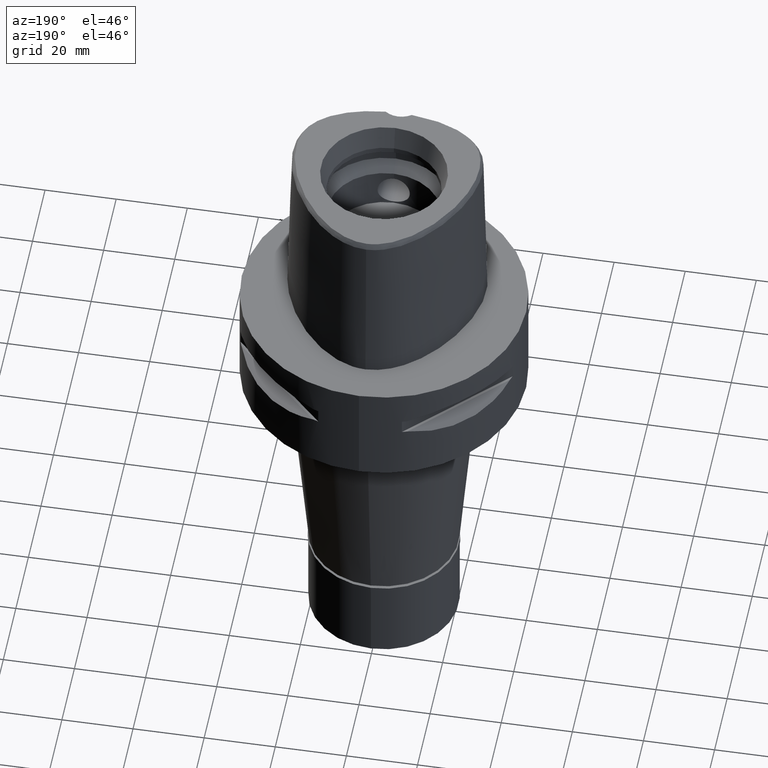
[diagram: clean part render]
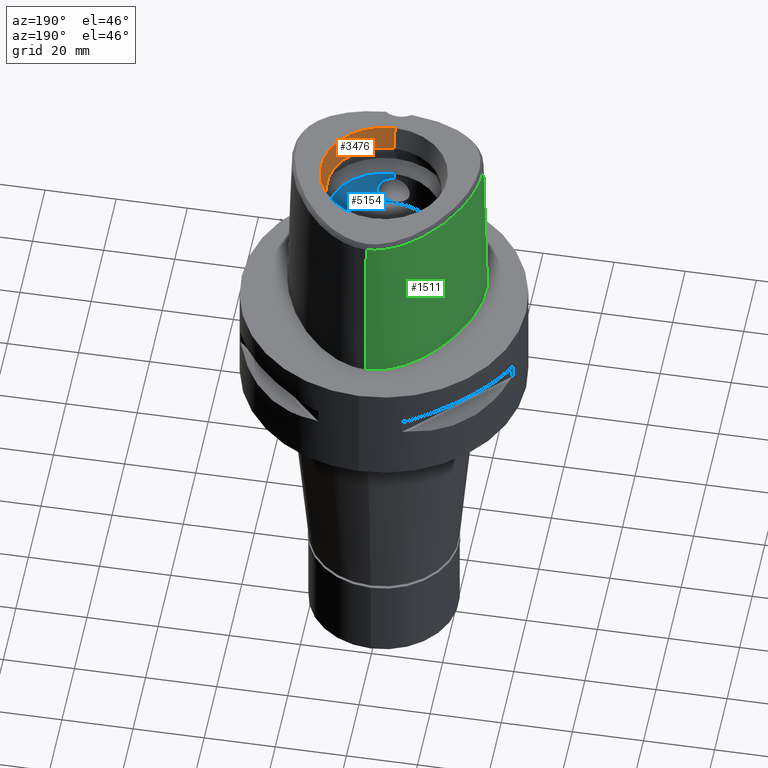
[diagram: same view with three faces highlighted in distinct colors, each labeled with its STEP entity id]
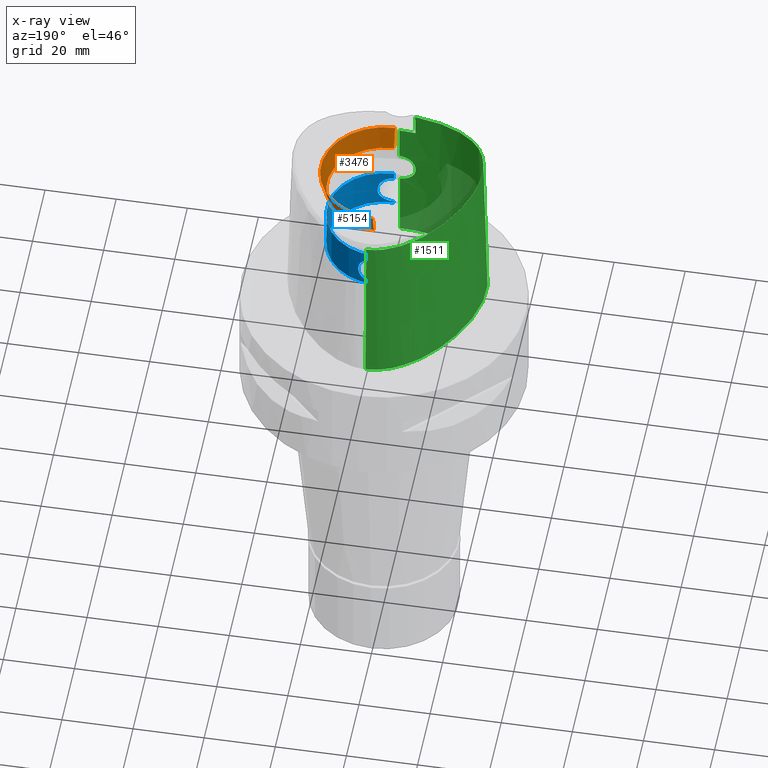
[diagram: x-ray of the same camera — body ghosted, the three highlighted faces saturated]
A machine part, auxiliary view with three faces highlighted in distinct colors.
The next image is the same camera in x-ray (body ghosted, the three faces saturated) — at least one of them is partly hidden behind the body in this view.
Their STEP definitions:

[orange] entity #3476 — the highlighted conical surface has half-angle 15 deg.
#59 = CONICAL_SURFACE ( 'NONE', #4078, 16.85743741578000154, 0.2617993877991000029 ) ;
#203 = DIRECTION ( 'NONE',  ( 0.0000000000000000000, 0.0000000000000000000, 1.000000000000000000 ) ) ;
#519 = ORIENTED_EDGE ( 'NONE', *, *, #2455, .F. ) ;
#541 = EDGE_CURVE ( 'NONE', #1410, #3661, #921, .T. ) ;
#699 = DIRECTION ( 'NONE',  ( 0.0000000000000000000, 0.0000000000000000000, 1.000000000000000000 ) ) ;
#703 = CARTESIAN_POINT ( 'NONE',  ( 0.0000000000000000000, 16.00000000000000000, 41.60000000000000142 ) ) ;
#855 = EDGE_LOOP ( 'NONE', ( #2106, #519, #4832, #3105 ) ) ;
#921 = CIRCLE ( 'NONE', #3508, 17.71487483155999954 ) ;
#1018 = CIRCLE ( 'NONE', #3682, 16.00000000000000000 ) ;
#1020 = CARTESIAN_POINT ( 'NONE',  ( 0.0000000000000000000, 16.00000000000000000, 41.60000000000000142 ) ) ;
#1200 = EDGE_CURVE ( 'NONE', #4904, #1410, #2328, .T. ) ;
#1287 = EDGE_CURVE ( 'NONE', #2847, #3661, #3862, .T. ) ;
#1410 = VERTEX_POINT ( 'NONE', #1548 ) ;
#1463 = CARTESIAN_POINT ( 'NONE',  ( 0.0000000000000000000, 0.0000000000000000000, 41.60000000000000142 ) ) ;
#1548 = CARTESIAN_POINT ( 'NONE',  ( 0.0000000000000000000, -17.71487483155999954, 48.00000000000000000 ) ) ;
#1564 = DIRECTION ( 'NONE',  ( 0.0000000000000000000, -0.2588190451025869088, 0.9659258262890505486 ) ) ;
#1679 = VECTOR ( 'NONE', #1564, 1000.000000000000000 ) ;
#1798 = DIRECTION ( 'NONE',  ( 0.0000000000000000000, 0.0000000000000000000, 1.000000000000000000 ) ) ;
#2071 = CARTESIAN_POINT ( 'NONE',  ( 0.0000000000000000000, -16.00000000000000000, 41.60000000000000142 ) ) ;
#2106 = ORIENTED_EDGE ( 'NONE', *, *, #1287, .F. ) ;
#2225 = DIRECTION ( 'NONE',  ( 0.0000000000000000000, 1.000000000000000000, 0.0000000000000000000 ) ) ;
#2227 = DIRECTION ( 'NONE',  ( 0.0000000000000000000, -1.000000000000000000, 0.0000000000000000000 ) ) ;
#2247 = FACE_OUTER_BOUND ( 'NONE', #855, .T. ) ;
#2328 = LINE ( 'NONE', #4357, #1679 ) ;
#2368 = VECTOR ( 'NONE', #3005, 1000.000000000000000 ) ;
#2455 = EDGE_CURVE ( 'NONE', #4904, #2847, #1018, .T. ) ;
#2621 = CARTESIAN_POINT ( 'NONE',  ( 0.0000000000000000000, 0.0000000000000000000, 44.79999999999999716 ) ) ;
#2705 = DIRECTION ( 'NONE',  ( 0.0000000000000000000, -1.000000000000000000, 0.0000000000000000000 ) ) ;
#2847 = VERTEX_POINT ( 'NONE', #1020 ) ;
#3005 = DIRECTION ( 'NONE',  ( 0.0000000000000000000, 0.2588190451025869088, 0.9659258262890505486 ) ) ;
#3053 = CARTESIAN_POINT ( 'NONE',  ( 0.0000000000000000000, 17.71487483155999954, 48.00000000000000000 ) ) ;
#3105 = ORIENTED_EDGE ( 'NONE', *, *, #541, .T. ) ;
#3476 = ADVANCED_FACE ( 'NONE', ( #2247 ), #59, .F. ) ;
#3508 = AXIS2_PLACEMENT_3D ( 'NONE', #4179, #1798, #2227 ) ;
#3661 = VERTEX_POINT ( 'NONE', #3053 ) ;
#3682 = AXIS2_PLACEMENT_3D ( 'NONE', #1463, #203, #2705 ) ;
#3862 = LINE ( 'NONE', #703, #2368 ) ;
#4078 = AXIS2_PLACEMENT_3D ( 'NONE', #2621, #699, #2225 ) ;
#4179 = CARTESIAN_POINT ( 'NONE',  ( 0.0000000000000000000, 0.0000000000000000000, 48.00000000000000000 ) ) ;
#4357 = CARTESIAN_POINT ( 'NONE',  ( 0.0000000000000000000, -16.00000000000000000, 41.60000000000000142 ) ) ;
#4832 = ORIENTED_EDGE ( 'NONE', *, *, #1200, .T. ) ;
#4904 = VERTEX_POINT ( 'NONE', #2071 ) ;

[blue] entity #5154 — the highlighted cylindrical surface (partial cylindrical patch) has radius 16 mm, axis along (0, 0, -1).
#4 = CARTESIAN_POINT ( 'NONE',  ( 4.086977290098439575, 15.46939710896591436, 22.99892130838378179 ) ) ;
#11 = CARTESIAN_POINT ( 'NONE',  ( 0.9962082175967942321, -15.96920693198799057, 29.44202344386631509 ) ) ;
#30 = CARTESIAN_POINT ( 'NONE',  ( 4.549969628939022570, 15.33940615444025646, 25.27729323598638089 ) ) ;
#36 = CARTESIAN_POINT ( 'NONE',  ( 4.550016828128796043, -15.33941121579424660, 25.13784116170160132 ) ) ;
#51 = CARTESIAN_POINT ( 'NONE',  ( 4.161428030123373922, 15.44954512553541726, 26.84475952259135667 ) ) ;
#54 = CARTESIAN_POINT ( 'NONE',  ( 4.323961735963286479, -15.40531205937661419, 26.45108983439440919 ) ) ;
#74 = CARTESIAN_POINT ( 'NONE',  ( 2.574465388933369958, 15.79152407840505745, 28.75166033253495712 ) ) ;
#82 = CARTESIAN_POINT ( 'NONE',  ( 3.751169547828881345, -15.55403617233515234, 27.57516546916804856 ) ) ;
#85 = ORIENTED_EDGE ( 'NONE', *, *, #4485, .F. ) ;
#103 = CARTESIAN_POINT ( 'NONE',  ( 1.850775727679746518, 15.89250999642956330, 29.15683968798263948 ) ) ;
#109 = CARTESIAN_POINT ( 'NONE',  ( 4.543547489458131139, -15.34147157909354497, 25.28214318541729710 ) ) ;
#110 = ORIENTED_EDGE ( 'NONE', *, *, #2048, .F. ) ;
#111 = VERTEX_POINT ( 'NONE', #2052 ) ;
#125 = EDGE_CURVE ( 'NONE', #2190, #3690, #5040, .T. ) ;
#132 = CARTESIAN_POINT ( 'NONE',  ( 1.747078318710702183, -15.90418482861358918, 20.79877242566623963 ) ) ;
#179 = CARTESIAN_POINT ( 'NONE',  ( 2.546620738279579577, 15.79604134675055604, 28.77057471350508777 ) ) ;
#266 = CARTESIAN_POINT ( 'NONE',  ( 0.2782013015967914060, 16.00000000000000711, 20.44999999999999929 ) ) ;
#295 = CARTESIAN_POINT ( 'NONE',  ( 2.546587751938866440, -15.79604663803838704, 21.22940300794441271 ) ) ;
#322 = CARTESIAN_POINT ( 'NONE',  ( 1.997936047084001743, -15.87476822621203887, 20.91148056799755395 ) ) ;
#331 = CARTESIAN_POINT ( 'NONE',  ( 0.0000000000000000000, 16.00000000000000000, 29.55000000000000071 ) ) ;
#335 = CARTESIAN_POINT ( 'NONE',  ( 1.707207874315188167, -15.90858119987962205, 29.21757803147074739 ) ) ;
#354 = CARTESIAN_POINT ( 'NONE',  ( 3.649470479182351124, 15.57840939008606185, 22.28201629146690976 ) ) ;
#379 = CARTESIAN_POINT ( 'NONE',  ( 4.053985978798844592, 15.47807549748950606, 22.93277328934321346 ) ) ;
#400 = CARTESIAN_POINT ( 'NONE',  ( 3.744577833560327029, 15.55572763828316774, 27.58647462658780825 ) ) ;
#405 = CARTESIAN_POINT ( 'NONE',  ( 2.523297974047943093, -15.79902995601022830, 28.78915039825570688 ) ) ;
#417 = LINE ( 'NONE', #1597, #941 ) ;
#424 = CARTESIAN_POINT ( 'NONE',  ( 3.536514746485360128, 15.60452860933670216, 27.86376314389772446 ) ) ;
#430 = CARTESIAN_POINT ( 'NONE',  ( 2.574432664116685920, -15.79152938143934826, 21.24831721091018011 ) ) ;
#450 = CARTESIAN_POINT ( 'NONE',  ( 3.189300142053554499, 15.67891719246137683, 21.75484346885352949 ) ) ;
#455 = CARTESIAN_POINT ( 'NONE',  ( 4.261969212494427062, -15.42206096146380645, 23.40603321982711194 ) ) ;
#479 = CARTESIAN_POINT ( 'NONE',  ( 4.237586783300753446, -15.42875071981104540, 23.34288945884287969 ) ) ;
#500 = CARTESIAN_POINT ( 'NONE',  ( 2.729597290681040622, 15.76540486867777524, 28.64086068374010807 ) ) ;
#507 = CARTESIAN_POINT ( 'NONE',  ( 3.608925104561844677, -15.58793851891443616, 27.77197051516056092 ) ) ;
#533 = CARTESIAN_POINT ( 'NONE',  ( 3.369125266152328102, -15.64144421124459505, 21.94071229671583367 ) ) ;
#537 = DIRECTION ( 'NONE',  ( 0.0000000000000000000, 0.0000000000000000000, -1.000000000000000000 ) ) ;
#555 = CARTESIAN_POINT ( 'NONE',  ( 1.754045412219450872, -15.90341773696105143, 20.80167885172048869 ) ) ;
#655 = DIRECTION ( 'NONE',  ( 0.0000000000000000000, 0.0000000000000000000, 1.000000000000000000 ) ) ;
#685 = CARTESIAN_POINT ( 'NONE',  ( 2.523274598537063707, 15.79903356793057867, 21.21083401355727460 ) ) ;
#711 = CARTESIAN_POINT ( 'NONE',  ( 1.159171110856038078, -15.96839087129520429, 20.55577344028494480 ) ) ;
#747 = CARTESIAN_POINT ( 'NONE',  ( 1.465311484624076011, -15.93288073456757381, 29.30877354139807878 ) ) ;
#766 = CARTESIAN_POINT ( 'NONE',  ( 3.903693436951860996, 15.51651326497629135, 27.33777345596545771 ) ) ;
#791 = CARTESIAN_POINT ( 'NONE',  ( 3.468485652279672316, 15.62005439302203946, 22.05131334578006985 ) ) ;
#812 = CARTESIAN_POINT ( 'NONE',  ( 3.164574645498917871, 15.68391565187350345, 21.73073258343147174 ) ) ;
#814 = B_SPLINE_CURVE_WITH_KNOTS ( 'NONE', 3,
 ( #2264, #266, #3501, #1870, #2941, #3449, #2562, #2320, #5028, #1471, #1080, #5085, #2351, #4136, #4264, #685, #2294, #1896, #3472, #3610, #4009, #4823, #812, #3932, #450, #864, #791, #2815, #354, #838, #2383, #1190, #1959, #4419, #3206, #2453, #1579, #4398, #5116, #379, #4, #1556, #2031, #3557, #1604, #3183, #3959, #2765, #3530, #1161, #4780, #3984, #5143, #30, #4346, #2057, #2836, #2794, #3155, #4728, #4757, #1238, #3581, #1217, #51, #1628, #4376, #1264, #766, #2425, #3247, #2406, #1649, #3227, #1986, #400, #2864, #424, #2008, #4797, #4034, #3630, #4446, #3318, #500, #4103, #3748, #74, #2101, #179, #3679, #2177, #4468, #1286, #2504, #1701, #4152, #103, #4058, #887, #4077, #3296, #2887, #2482, #4850 ),
 .UNSPECIFIED., .F., .F.,
 ( 4, 2, 2, 1, 1, 1, 1, 2, 2, 2, 2, 2, 1, 1, 2, 2, 2, 2, 1, 1, 1, 1, 2, 2, 2, 2, 1, 1, 2, 2, 2, 2, 2, 2, 2, 1, 1, 1, 2, 2, 2, 2, 1, 1, 1, 2, 2, 2, 2, 2, 2, 2, 1, 1, 1, 2, 2, 2, 2, 1, 1, 2, 2, 4 ),
 ( 0.0000000000000000000, 0.06249999999996654065, 0.09374999999994973465, 0.1093749999999412692, 0.1171874999999370781, 0.1210937499999349826, 0.1230468749999340111, 0.1240234374999335532, 0.1249999999999330813, 0.1874999999999101552, 0.2187499999998987477, 0.2343749999998929745, 0.2421874999998901712, 0.2460937499998887001, 0.2480468749998880063, 0.2499999999998872569, 0.2812499999998750999, 0.2968749999998689937, 0.3046874999998659961, 0.3085937499998644973, 0.3105468749998637756, 0.3115234374998638867, 0.3120117187498644418, 0.3124999999998649969, 0.3437499999998670508, 0.3593749999998683275, 0.3671874999998693823, 0.3710937499998695488, 0.3730468749998696043, 0.3749999999998696598, 0.4374999999998667732, 0.4687499999998652744, 0.4999999999998638867, 0.5624999999998610001, 0.5937499999998595568, 0.6093749999998592237, 0.6171874999998593347, 0.6210937499998597788, 0.6230468749998600009, 0.6249999999998601119, 0.6562499999998661071, 0.6718749999998686606, 0.6796874999998697708, 0.6835937499998703260, 0.6855468749998705480, 0.6865234374998711031, 0.6874999999998715472, 0.7187499999998830935, 0.7343749999998886446, 0.7499999999998940847, 0.7812499999999055200, 0.7968749999999111822, 0.8046874999999141798, 0.8085937499999159561, 0.8105468749999169553, 0.8115234374999170663, 0.8124999999999171774, 0.8437499999999279465, 0.8593749999999333866, 0.8671874999999360512, 0.8710937499999372724, 0.8730468749999379385, 0.8749999999999387157, 1.000000000000000000 ),
 .UNSPECIFIED. ) ;
#819 = CARTESIAN_POINT ( 'NONE',  ( 2.785122922255519828, -15.75567992730158728, 21.40120808577647793 ) ) ;
#838 = CARTESIAN_POINT ( 'NONE',  ( 3.702056838117071980, 15.56588022015961137, 22.35459497960722075 ) ) ;
#844 = CARTESIAN_POINT ( 'NONE',  ( 4.442100170287626604, -15.37148932952082525, 24.00408744802902916 ) ) ;
#863 = EDGE_CURVE ( 'NONE', #1028, #2190, #4998, .T. ) ;
#864 = CARTESIAN_POINT ( 'NONE',  ( 3.349830735756511579, 15.64617010507494577, 21.91353457420719053 ) ) ;
#869 = B_SPLINE_CURVE_WITH_KNOTS ( 'NONE', 3,
 ( #3138, #2410, #1175, #11, #3481, #4380, #747, #4715, #2304, #3188, #3880, #335, #3590, #3989, #1146, #405, #2363, #3943, #2391, #5126, #1565, #4737, #2799, #3966, #1992, #1633, #2846, #507, #2109, #2867, #3231, #82, #2464, #1315, #1614, #4802, #4451, #4402, #4855, #3688, #4064, #4427, #3213, #3615, #4039, #1656, #4500, #54, #1221, #4086, #1243, #109, #36, #1707, #3302, #844, #4880, #2913, #923, #455, #479, #2537, #2060, #3706, #3633, #4785, #4111, #895, #3255, #2083, #3659, #4830, #2487, #1270, #3282, #870, #2435, #2820, #1683, #533, #1294, #2137, #2893, #819, #4472, #2511, #4015, #430, #2040, #295, #3096, #3129, #5054, #1137, #4675, #322, #1840, #3324, #1344, #4527, #555, #132, #711, #4645, #3895 ),
 .UNSPECIFIED., .F., .F.,
 ( 4, 2, 2, 1, 1, 1, 1, 2, 2, 2, 2, 2, 1, 1, 2, 2, 2, 2, 1, 1, 1, 1, 2, 2, 2, 2, 1, 1, 2, 2, 2, 2, 2, 2, 2, 1, 1, 1, 2, 2, 2, 2, 1, 1, 1, 2, 2, 2, 2, 2, 2, 2, 1, 1, 1, 2, 2, 2, 2, 1, 1, 2, 2, 4 ),
 ( 0.0000000000000000000, 0.06249999999998458178, 0.09374999999997692124, 0.1093749999999731048, 0.1171874999999710509, 0.1210937499999699962, 0.1230468749999693856, 0.1240234374999690525, 0.1249999999999687333, 0.1874999999999487355, 0.2187499999999386324, 0.2343749999999333589, 0.2421874999999306943, 0.2460937499999294453, 0.2480468749999286404, 0.2499999999999278633, 0.2812499999999161782, 0.2968749999999103495, 0.3046874999999074074, 0.3085937499999064082, 0.3105468749999054090, 0.3115234374999054090, 0.3120117187499054090, 0.3124999999999054645, 0.3437499999999121258, 0.3593749999999155120, 0.3671874999999171774, 0.3710937499999183986, 0.3730468749999190092, 0.3749999999999196199, 0.4374999999999352185, 0.4687499999999426570, 0.4999999999999500400, 0.5624999999999656941, 0.5937499999999735767, 0.6093749999999777955, 0.6171874999999796829, 0.6210937499999802380, 0.6230468749999805711, 0.6249999999999807931, 0.6562499999999935607, 0.6718749999999998890, 0.6796875000000031086, 0.6835937500000043299, 0.6855468750000047740, 0.6865234375000049960, 0.6875000000000051070, 0.7187500000000003331, 0.7343749999999978906, 0.7499999999999953371, 0.7812499999999900080, 0.7968749999999872324, 0.8046874999999860112, 0.8085937499999852340, 0.8105468749999850120, 0.8115234374999849010, 0.8124999999999847899, 0.8437499999999857891, 0.8593749999999864553, 0.8671874999999866773, 0.8710937499999868994, 0.8730468749999871214, 0.8749999999999873435, 1.000000000000000000 ),
 .UNSPECIFIED. ) ;
#870 = CARTESIAN_POINT ( 'NONE',  ( 3.744574952276495505, -15.55572859462526125, 22.41352109345751131 ) ) ;
#887 = CARTESIAN_POINT ( 'NONE',  ( 1.770126022856088888, 15.90163656242777535, 29.19156648951770450 ) ) ;
#895 = CARTESIAN_POINT ( 'NONE',  ( 3.962675966015230866, -15.50163061358844274, 22.76265160108562924 ) ) ;
#923 = CARTESIAN_POINT ( 'NONE',  ( 4.308072446263530253, -15.40933950963638210, 23.53257834519853375 ) ) ;
#936 = FACE_OUTER_BOUND ( 'NONE', #3843, .T. ) ;
#941 = VECTOR ( 'NONE', #1572, 1000.000000000000000 ) ;
#962 = CYLINDRICAL_SURFACE ( 'NONE', #4495, 16.00000000000000000 ) ;
#1012 = AXIS2_PLACEMENT_3D ( 'NONE', #4320, #655, #4294 ) ;
#1028 = VERTEX_POINT ( 'NONE', #4090 ) ;
#1058 = VERTEX_POINT ( 'NONE', #4805 ) ;
#1080 = CARTESIAN_POINT ( 'NONE',  ( 1.698251660413096387, 15.90953892135421555, 20.77880769513062731 ) ) ;
#1137 = CARTESIAN_POINT ( 'NONE',  ( 2.264348912133030911, -15.83946624510570267, 21.05056460265715756 ) ) ;
#1146 = CARTESIAN_POINT ( 'NONE',  ( 2.143401054089212998, -15.85668826431955658, 29.02456277713150712 ) ) ;
#1161 = CARTESIAN_POINT ( 'NONE',  ( 4.495809259330163066, 15.35589036408810060, 24.28415928063268225 ) ) ;
#1175 = CARTESIAN_POINT ( 'NONE',  ( 0.5640746612217173439, -15.99230173299699764, 29.52441511482192382 ) ) ;
#1190 = CARTESIAN_POINT ( 'NONE',  ( 3.751177014894234496, 15.55403459786074549, 22.42484540323997066 ) ) ;
#1217 = CARTESIAN_POINT ( 'NONE',  ( 4.215499819405168047, 15.43479043457173283, 26.71234694426702916 ) ) ;
#1221 = CARTESIAN_POINT ( 'NONE',  ( 4.411054695672140369, -15.38060105775067399, 26.15499689250681215 ) ) ;
#1238 = CARTESIAN_POINT ( 'NONE',  ( 4.226857831073056460, 15.43168670836678658, 26.68412203476030697 ) ) ;
#1243 = CARTESIAN_POINT ( 'NONE',  ( 4.516447097097185726, -15.34971033308621635, 25.57020538857597813 ) ) ;
#1264 = CARTESIAN_POINT ( 'NONE',  ( 3.962677025106232431, 15.50163036113120718, 27.23734653533288252 ) ) ;
#1270 = CARTESIAN_POINT ( 'NONE',  ( 3.803025602435695873, -15.54144546655661507, 22.50209651552996704 ) ) ;
#1286 = CARTESIAN_POINT ( 'NONE',  ( 2.264380261550365425, 15.83946175093809927, 28.94941747298992141 ) ) ;
#1294 = CARTESIAN_POINT ( 'NONE',  ( 3.303400810044995417, -15.65543729914151427, 21.86952368851872919 ) ) ;
#1315 = CARTESIAN_POINT ( 'NONE',  ( 3.768400076223533901, -15.54985749062494804, 27.54983819170281834 ) ) ;
#1334 = ORIENTED_EDGE ( 'NONE', *, *, #2980, .F. ) ;
#1340 = ORIENTED_EDGE ( 'NONE', *, *, #2886, .T. ) ;
#1344 = CARTESIAN_POINT ( 'NONE',  ( 1.794211577394496882, -15.89895019350739602, 20.81863176061382248 ) ) ;
#1466 = LINE ( 'NONE', #3494, #4688 ) ;
#1471 = CARTESIAN_POINT ( 'NONE',  ( 1.684854944397863541, 15.91096538466819155, 20.77342622897208813 ) ) ;
#1556 = CARTESIAN_POINT ( 'NONE',  ( 4.132994277957470430, 15.45714554145822817, 23.09680318323983172 ) ) ;
#1562 = LINE ( 'NONE', #331, #3820 ) ;
#1565 = CARTESIAN_POINT ( 'NONE',  ( 3.079092618832109274, -15.70089896343313995, 28.35045023963298405 ) ) ;
#1572 = DIRECTION ( 'NONE',  ( 0.0000000000000000000, 0.0000000000000000000, 1.000000000000000000 ) ) ;
#1579 = CARTESIAN_POINT ( 'NONE',  ( 3.772437110205654864, 15.54887807023826163, 22.45613975368386761 ) ) ;
#1597 = CARTESIAN_POINT ( 'NONE',  ( 0.0000000000000000000, 16.00000000000000000, 20.00000000000000000 ) ) ;
#1604 = CARTESIAN_POINT ( 'NONE',  ( 4.189656546178186503, 15.44187136844729835, 23.22535852732936590 ) ) ;
#1614 = CARTESIAN_POINT ( 'NONE',  ( 3.770760734101257672, -15.54928465813047467, 27.54634354341527214 ) ) ;
#1628 = CARTESIAN_POINT ( 'NONE',  ( 4.102398804168365665, 15.46541759477710798, 26.97353641195589447 ) ) ;
#1633 = CARTESIAN_POINT ( 'NONE',  ( 3.349840423004541989, -15.64616789809117314, 28.08645433734457342 ) ) ;
#1649 = CARTESIAN_POINT ( 'NONE',  ( 3.808567360701280879, 15.54008837984835090, 27.48944576344617374 ) ) ;
#1656 = CARTESIAN_POINT ( 'NONE',  ( 4.196349607671426618, -15.44005382475887700, 26.75875646608632152 ) ) ;
#1683 = CARTESIAN_POINT ( 'NONE',  ( 3.484915605883006418, -15.61614794283481622, 22.07329374033457015 ) ) ;
#1701 = CARTESIAN_POINT ( 'NONE',  ( 1.997966242366577605, 15.87476439172031206, 29.08850468438479453 ) ) ;
#1707 = CARTESIAN_POINT ( 'NONE',  ( 4.549966242427916363, -15.33940732230152371, 24.72265458138945604 ) ) ;
#1840 = CARTESIAN_POINT ( 'NONE',  ( 1.899637281608623995, -15.88672085085081953, 20.86536723555195039 ) ) ;
#1870 = CARTESIAN_POINT ( 'NONE',  ( 0.9961926526049751374, 15.96920793816025608, 20.55797314716945934 ) ) ;
#1876 = ORIENTED_EDGE ( 'NONE', *, *, #125, .T. ) ;
#1896 = CARTESIAN_POINT ( 'NONE',  ( 2.857351461372844792, 15.74233650126612183, 21.45806363788261706 ) ) ;
#1959 = CARTESIAN_POINT ( 'NONE',  ( 3.762799422814133710, 15.55121651038781039, 22.44189552775758756 ) ) ;
#1986 = CARTESIAN_POINT ( 'NONE',  ( 3.799106346153691582, 15.54240362262474306, 27.50385701844249908 ) ) ;
#1992 = CARTESIAN_POINT ( 'NONE',  ( 3.189316939996577727, -15.67891379176638367, 28.24514002011345326 ) ) ;
#2008 = CARTESIAN_POINT ( 'NONE',  ( 3.484927592812291142, 15.61614509033863207, 27.92669190149619141 ) ) ;
#2031 = CARTESIAN_POINT ( 'NONE',  ( 4.155135374964909367, 15.45121126152381308, 23.14540970916084817 ) ) ;
#2040 = CARTESIAN_POINT ( 'NONE',  ( 2.554833987909692627, -15.79471443075282089, 21.23497661347725085 ) ) ;
#2048 = EDGE_CURVE ( 'NONE', #3451, #3690, #869, .T. ) ;
#2052 = CARTESIAN_POINT ( 'NONE',  ( 0.0000000000000000000, -16.00000000000000000, 31.50000000000000000 ) ) ;
#2057 = CARTESIAN_POINT ( 'NONE',  ( 4.442108612069406881, 15.37148708700024358, 25.99587535441274611 ) ) ;
#2060 = CARTESIAN_POINT ( 'NONE',  ( 4.219629281423734390, -15.43366229842501802, 23.29784757614799773 ) ) ;
#2080 = ORIENTED_EDGE ( 'NONE', *, *, #2153, .F. ) ;
#2083 = CARTESIAN_POINT ( 'NONE',  ( 3.873230888532573246, -15.52414120514505846, 22.61183188859394377 ) ) ;
#2101 = CARTESIAN_POINT ( 'NONE',  ( 2.554866899785636303, 15.79470913535774024, 28.76500105321615663 ) ) ;
#2109 = CARTESIAN_POINT ( 'NONE',  ( 3.649467371010107541, -15.57840986860043841, 27.71798782283265439 ) ) ;
#2123 = CARTESIAN_POINT ( 'NONE',  ( 0.0000000000000000000, 0.0000000000000000000, 50.39999999999999858 ) ) ;
#2137 = CARTESIAN_POINT ( 'NONE',  ( 3.094055331481240234, -15.69862851489195776, 21.65804293864540142 ) ) ;
#2152 = EDGE_CURVE ( 'NONE', #111, #3897, #3275, .T. ) ;
#2153 = EDGE_CURVE ( 'NONE', #1058, #3961, #814, .T. ) ;
#2177 = CARTESIAN_POINT ( 'NONE',  ( 2.539990947862211357, 15.79711040860235371, 28.77504597664269781 ) ) ;
#2190 = VERTEX_POINT ( 'NONE', #4488 ) ;
#2264 = CARTESIAN_POINT ( 'NONE',  ( 0.0000000000000000000, 16.00000000000000000, 20.44999999999999929 ) ) ;
#2294 = CARTESIAN_POINT ( 'NONE',  ( 2.655282872106861092, 15.77765202247453580, 21.30120896271615294 ) ) ;
#2304 = CARTESIAN_POINT ( 'NONE',  ( 1.653598826387909337, -15.91425152984741587, 29.23895709058962211 ) ) ;
#2320 = CARTESIAN_POINT ( 'NONE',  ( 1.590917537191384623, 15.92067435631518535, 20.73689644766570694 ) ) ;
#2351 = CARTESIAN_POINT ( 'NONE',  ( 1.713042194257537343, 15.90795415412787506, 20.78478975811450624 ) ) ;
#2363 = CARTESIAN_POINT ( 'NONE',  ( 2.655305071783979010, -15.77764841884311409, 28.69877505743355783 ) ) ;
#2383 = CARTESIAN_POINT ( 'NONE',  ( 3.726289610588630286, 15.56005673607846163, 22.38878970849017591 ) ) ;
#2391 = CARTESIAN_POINT ( 'NONE',  ( 2.925390831095746158, -15.73002061711489752, 28.48608766316820251 ) ) ;
#2406 = CARTESIAN_POINT ( 'NONE',  ( 3.816846021525992949, 15.53805930982571581, 27.47676492289609484 ) ) ;
#2410 = CARTESIAN_POINT ( 'NONE',  ( 0.2782053163250134964, -16.00000000000000000, 29.54999999999999361 ) ) ;
#2425 = CARTESIAN_POINT ( 'NONE',  ( 3.873231694624204025, 15.52414087639344409, 27.38816680141201587 ) ) ;
#2435 = CARTESIAN_POINT ( 'NONE',  ( 3.674610039138421769, -15.57277448595782765, 22.31261352575248225 ) ) ;
#2453 = CARTESIAN_POINT ( 'NONE',  ( 3.772333376022444451, 15.54890324115859279, 22.45598686023981116 ) ) ;
#2464 = CARTESIAN_POINT ( 'NONE',  ( 3.762791444843096134, -15.55121822181426339, 27.55811620615406099 ) ) ;
#2482 = CARTESIAN_POINT ( 'NONE',  ( 0.5625441145297881418, 16.00000000000000355, 29.54999999999999716 ) ) ;
#2487 = CARTESIAN_POINT ( 'NONE',  ( 3.808566221780114613, -15.54008885938420015, 22.51055249406128311 ) ) ;
#2504 = CARTESIAN_POINT ( 'NONE',  ( 2.064188499578045732, 15.86630605860837129, 29.05553078208316009 ) ) ;
#2511 = CARTESIAN_POINT ( 'NONE',  ( 2.652222037309386327, -15.77860540331598571, 21.30280711199906918 ) ) ;
#2537 = CARTESIAN_POINT ( 'NONE',  ( 4.226850584642154018, -15.43168826605275967, 23.31585977965487899 ) ) ;
#2562 = CARTESIAN_POINT ( 'NONE',  ( 1.465288112839591816, 15.93288292770866299, 20.69121855440565483 ) ) ;
#2765 = CARTESIAN_POINT ( 'NONE',  ( 4.323958204503244751, 15.40531264616215168, 23.54890256027089279 ) ) ;
#2794 = CARTESIAN_POINT ( 'NONE',  ( 4.343082254756093441, 15.39956143003375644, 26.35862238567884219 ) ) ;
#2799 = CARTESIAN_POINT ( 'NONE',  ( 3.164591427249837441, -15.68391229428003975, 28.26925117184790537 ) ) ;
#2815 = CARTESIAN_POINT ( 'NONE',  ( 3.608926498398997484, 15.58793843905590037, 22.22803121313303265 ) ) ;
#2820 = CARTESIAN_POINT ( 'NONE',  ( 3.536504642215984262, -15.60453110576458258, 22.13622431639432619 ) ) ;
#2836 = CARTESIAN_POINT ( 'NONE',  ( 4.407204992253693554, 15.38151343653829706, 26.14101585880031919 ) ) ;
#2846 = CARTESIAN_POINT ( 'NONE',  ( 3.468490236578468888, -15.62005317905867585, 27.94868093692495137 ) ) ;
#2864 = CARTESIAN_POINT ( 'NONE',  ( 3.674615227646960136, 15.57277297764961865, 27.68737911627052029 ) ) ;
#2867 = CARTESIAN_POINT ( 'NONE',  ( 3.702051489919617744, -15.56588124773057480, 27.64541248962566655 ) ) ;
#2886 = EDGE_CURVE ( 'NONE', #3451, #111, #1466, .T. ) ;
#2887 = CARTESIAN_POINT ( 'NONE',  ( 1.159190779532319526, 15.96838977935147241, 29.44422320749352195 ) ) ;
#2893 = CARTESIAN_POINT ( 'NONE',  ( 2.962116243003629190, -15.72368917193197468, 21.54294647152389430 ) ) ;
#2913 = CARTESIAN_POINT ( 'NONE',  ( 4.343073568141205598, -15.39956351927066081, 23.64134995182499921 ) ) ;
#2941 = CARTESIAN_POINT ( 'NONE',  ( 1.140765637915484909, 15.95958541883533321, 20.59275875371281828 ) ) ;
#2980 = EDGE_CURVE ( 'NONE', #1028, #1058, #417, .T. ) ;
#2990 = ORIENTED_EDGE ( 'NONE', *, *, #2152, .T. ) ;
#3080 = CARTESIAN_POINT ( 'NONE',  ( 0.0000000000000000000, -16.00000000000000000, 20.00000000000000000 ) ) ;
#3096 = CARTESIAN_POINT ( 'NONE',  ( 2.541124487614295990, -15.79692748426237259, 21.22571898326704698 ) ) ;
#3129 = CARTESIAN_POINT ( 'NONE',  ( 2.539957837989949230, -15.79711570675642740, 21.22493174610566058 ) ) ;
#3138 = CARTESIAN_POINT ( 'NONE',  ( 0.0000000000000000000, -16.00000000000000000, 29.55000000000000071 ) ) ;
#3155 = CARTESIAN_POINT ( 'NONE',  ( 4.308080894153779816, 15.40933754407856426, 26.46739704395423232 ) ) ;
#3183 = CARTESIAN_POINT ( 'NONE',  ( 4.196351796721544680, 15.44005286165201873, 23.24124875846293392 ) ) ;
#3188 = CARTESIAN_POINT ( 'NONE',  ( 1.684881952941278405, -15.91096247534174246, 29.22656300514109873 ) ) ;
#3206 = CARTESIAN_POINT ( 'NONE',  ( 3.770769065103096285, 15.54928285107902575, 22.45366879358027390 ) ) ;
#3213 = CARTESIAN_POINT ( 'NONE',  ( 4.155131648649582843, -15.45121261148406333, 26.85459867569572978 ) ) ;
#3227 = CARTESIAN_POINT ( 'NONE',  ( 3.803026785374167495, 15.54144497151958149, 27.49790168338665808 ) ) ;
#3231 = CARTESIAN_POINT ( 'NONE',  ( 3.726283225362692519, -15.56005802594591714, 27.61121938260865250 ) ) ;
#3247 = CARTESIAN_POINT ( 'NONE',  ( 3.835938342235793996, 15.53336553549570809, 27.44719883371852731 ) ) ;
#3255 = CARTESIAN_POINT ( 'NONE',  ( 3.903692605973096974, -15.51651355511094899, 22.66222515936397386 ) ) ;
#3275 = CIRCLE ( 'NONE', #1012, 16.00000000000000000 ) ;
#3282 = CARTESIAN_POINT ( 'NONE',  ( 3.799105167250765192, -15.54240411986898884, 22.49614119269755719 ) ) ;
#3296 = CARTESIAN_POINT ( 'NONE',  ( 1.747108114875768781, 15.90418151865913643, 29.20121518394913096 ) ) ;
#3302 = CARTESIAN_POINT ( 'NONE',  ( 4.524610095710491997, -15.34742685073316970, 24.43716217436503158 ) ) ;
#3318 = CARTESIAN_POINT ( 'NONE',  ( 2.785152895743186363, 15.75567470001112547, 28.59876870134960569 ) ) ;
#3324 = CARTESIAN_POINT ( 'NONE',  ( 1.850745930718154408, -15.89251350341647928, 20.84314704806617868 ) ) ;
#3449 = CARTESIAN_POINT ( 'NONE',  ( 1.357188221007183060, 15.94226488405047704, 20.65647659800648483 ) ) ;
#3451 = VERTEX_POINT ( 'NONE', #4662 ) ;
#3472 = CARTESIAN_POINT ( 'NONE',  ( 2.925371362859918722, 15.73002412702591890, 21.51389598532850655 ) ) ;
#3481 = CARTESIAN_POINT ( 'NONE',  ( 1.140783603876998065, -15.95958409823423629, 29.40723668847786598 ) ) ;
#3483 = CARTESIAN_POINT ( 'NONE',  ( 0.0000000000000000000, -16.00000000000000000, 20.44999999999999929 ) ) ;
#3494 = CARTESIAN_POINT ( 'NONE',  ( 0.0000000000000000000, -16.00000000000000000, 29.55000000000000071 ) ) ;
#3501 = CARTESIAN_POINT ( 'NONE',  ( 0.5640661506413194859, 15.99230198454006491, 20.47558414519757974 ) ) ;
#3512 = AXIS2_PLACEMENT_3D ( 'NONE', #3710, #537, #3637 ) ;
#3530 = CARTESIAN_POINT ( 'NONE',  ( 4.411048936297221168, 15.38060245814164340, 23.84498371928194516 ) ) ;
#3557 = CARTESIAN_POINT ( 'NONE',  ( 4.179513332673260528, 15.44462306661765361, 23.20147437630696174 ) ) ;
#3564 = CARTESIAN_POINT ( 'NONE',  ( 0.0000000000000000000, 16.00000000000000000, 29.55000000000000071 ) ) ;
#3581 = CARTESIAN_POINT ( 'NONE',  ( 4.219636397351836266, 15.43366078113542628, 26.70213478497222326 ) ) ;
#3590 = CARTESIAN_POINT ( 'NONE',  ( 1.713069719679958247, -15.90795114070918359, 29.21519905557963170 ) ) ;
#3610 = CARTESIAN_POINT ( 'NONE',  ( 3.027778349938317515, 15.71074476490952421, 21.60336740777249176 ) ) ;
#3615 = CARTESIAN_POINT ( 'NONE',  ( 4.179510492306046210, -15.44462419898390948, 26.79853223435492282 ) ) ;
#3630 = CARTESIAN_POINT ( 'NONE',  ( 3.094079820521395519, 15.69862372471519940, 28.34193422348686298 ) ) ;
#3633 = CARTESIAN_POINT ( 'NONE',  ( 4.161423080050964174, -15.44954601841260811, 23.15522980019365207 ) ) ;
#3637 = DIRECTION ( 'NONE',  ( 0.0000000000000000000, 1.000000000000000000, 0.0000000000000000000 ) ) ;
#3659 = CARTESIAN_POINT ( 'NONE',  ( 3.835937387391450404, -15.53336594391234726, 22.55279966809243675 ) ) ;
#3679 = CARTESIAN_POINT ( 'NONE',  ( 2.541157522327708307, 15.79692219589786539, 28.77425877510762575 ) ) ;
#3688 = CARTESIAN_POINT ( 'NONE',  ( 4.053979410308064857, -15.47807741150691463, 27.06723962283866669 ) ) ;
#3690 = VERTEX_POINT ( 'NONE', #3483 ) ;
#3706 = CARTESIAN_POINT ( 'NONE',  ( 4.215492713729186214, -15.43479194653279229, 23.28763556495944798 ) ) ;
#3710 = CARTESIAN_POINT ( 'NONE',  ( 0.0000000000000000000, 0.0000000000000000000, 20.00000000000000000 ) ) ;
#3743 = DIRECTION ( 'NONE',  ( 0.0000000000000000000, -1.000000000000000000, 0.0000000000000000000 ) ) ;
#3748 = CARTESIAN_POINT ( 'NONE',  ( 2.615076321123176673, 15.78484770968860396, 28.72361617527827704 ) ) ;
#3820 = VECTOR ( 'NONE', #5096, 1000.000000000000000 ) ;
#3835 = DIRECTION ( 'NONE',  ( 0.0000000000000000000, 0.0000000000000000000, 1.000000000000000000 ) ) ;
#3843 = EDGE_LOOP ( 'NONE', ( #1334, #4997, #1876, #110, #1340, #2990, #85, #2080 ) ) ;
#3880 = CARTESIAN_POINT ( 'NONE',  ( 1.698278889589560192, -15.90953596541613102, 29.22118135014866525 ) ) ;
#3895 = CARTESIAN_POINT ( 'NONE',  ( 0.0000000000000000000, -16.00000000000000000, 20.44999999999999929 ) ) ;
#3897 = VERTEX_POINT ( 'NONE', #4693 ) ;
#3932 = CARTESIAN_POINT ( 'NONE',  ( 3.181663106844978994, 15.68046594130023763, 21.74736076354710335 ) ) ;
#3943 = CARTESIAN_POINT ( 'NONE',  ( 2.857371643866614797, -15.74233296149645334, 28.54192006915184265 ) ) ;
#3959 = CARTESIAN_POINT ( 'NONE',  ( 4.199165497935947400, 15.43928784429265910, 23.24797072505772277 ) ) ;
#3961 = VERTEX_POINT ( 'NONE', #3564 ) ;
#3966 = CARTESIAN_POINT ( 'NONE',  ( 3.181679688156944241, -15.68046259706428280, 28.25262301658548481 ) ) ;
#3969 = DIRECTION ( 'NONE',  ( 0.0000000000000000000, 0.0000000000000000000, 1.000000000000000000 ) ) ;
#3984 = CARTESIAN_POINT ( 'NONE',  ( 4.543544356695304209, 15.34147259334892155, 24.71780853530669120 ) ) ;
#3989 = CARTESIAN_POINT ( 'NONE',  ( 1.912207018549581639, -15.88647873226976870, 29.13410031170253944 ) ) ;
#4009 = CARTESIAN_POINT ( 'NONE',  ( 3.079074847965816097, 15.70090238366231361, 21.64953342140152870 ) ) ;
#4015 = CARTESIAN_POINT ( 'NONE',  ( 2.615044023381621674, -15.78485302022387948, 21.27636114051184535 ) ) ;
#4034 = CARTESIAN_POINT ( 'NONE',  ( 3.303420936129999763, 15.65543299877743344, 28.13045502941756126 ) ) ;
#4039 = CARTESIAN_POINT ( 'NONE',  ( 4.189654095399452771, -15.44187240023451402, 26.77464726007936235 ) ) ;
#4058 = CARTESIAN_POINT ( 'NONE',  ( 1.794241281059349546, 15.89894680430803042, 29.18135549407481477 ) ) ;
#4064 = CARTESIAN_POINT ( 'NONE',  ( 4.086971507884865851, -15.46939889149603431, 27.00109056298330401 ) ) ;
#4077 = CARTESIAN_POINT ( 'NONE',  ( 1.754075067409113897, 15.90341442921245196, 29.19830875838519191 ) ) ;
#4086 = CARTESIAN_POINT ( 'NONE',  ( 4.495814971635935464, -15.35588874103671309, 25.71580589428425156 ) ) ;
#4090 = CARTESIAN_POINT ( 'NONE',  ( 0.0000000000000000000, 16.00000000000000000, 20.00000000000000000 ) ) ;
#4103 = CARTESIAN_POINT ( 'NONE',  ( 2.652253879204503839, 15.77860009968395971, 28.69717004371845803 ) ) ;
#4111 = CARTESIAN_POINT ( 'NONE',  ( 3.999411058311149958, -15.49220513063438354, 22.82912080818884704 ) ) ;
#4136 = CARTESIAN_POINT ( 'NONE',  ( 1.912179651897611077, 15.88648207706449789, 20.86588705029586777 ) ) ;
#4152 = CARTESIAN_POINT ( 'NONE',  ( 1.899667195843307788, 15.88671723722100104, 29.13461902235320622 ) ) ;
#4176 = DIRECTION ( 'NONE',  ( 0.0000000000000000000, 0.0000000000000000000, -1.000000000000000000 ) ) ;
#4264 = CARTESIAN_POINT ( 'NONE',  ( 2.143374776122538350, 15.85669179824992447, 20.97542314536930874 ) ) ;
#4294 = DIRECTION ( 'NONE',  ( 0.0000000000000000000, -1.000000000000000000, 0.0000000000000000000 ) ) ;
#4320 = CARTESIAN_POINT ( 'NONE',  ( 0.0000000000000000000, 0.0000000000000000000, 31.50000000000000000 ) ) ;
#4346 = CARTESIAN_POINT ( 'NONE',  ( 4.524616351025440686, 15.34742497676284323, 25.56279076735921052 ) ) ;
#4376 = CARTESIAN_POINT ( 'NONE',  ( 3.999412507078544010, 15.49220485055346153, 27.17087656896083558 ) ) ;
#4380 = CARTESIAN_POINT ( 'NONE',  ( 1.357209790627667001, -15.94226299747747788, 29.34351668570634075 ) ) ;
#4398 = CARTESIAN_POINT ( 'NONE',  ( 3.866446441693441649, 15.52606353177364440, 22.59572289399530476 ) ) ;
#4402 = CARTESIAN_POINT ( 'NONE',  ( 3.866437423702234977, -15.52606563446129861, 27.40429148410201776 ) ) ;
#4419 = CARTESIAN_POINT ( 'NONE',  ( 3.768408302387250330, 15.54985571206031914, 22.45017396549928890 ) ) ;
#4427 = CARTESIAN_POINT ( 'NONE',  ( 4.132989838985319686, -15.45714704862971800, 26.90320647269942356 ) ) ;
#4446 = CARTESIAN_POINT ( 'NONE',  ( 2.962143270709701959, 15.72368415002362774, 28.45703030326751914 ) ) ;
#4451 = CARTESIAN_POINT ( 'NONE',  ( 3.772428649167056225, -15.54887991101984035, 27.54387279360471652 ) ) ;
#4468 = CARTESIAN_POINT ( 'NONE',  ( 2.399898904058580307, 15.81960646804535209, 28.86907658520122411 ) ) ;
#4472 = CARTESIAN_POINT ( 'NONE',  ( 2.729566476647385276, -15.76541014072637914, 21.35911620692725776 ) ) ;
#4485 = EDGE_CURVE ( 'NONE', #3961, #3897, #1562, .T. ) ;
#4488 = CARTESIAN_POINT ( 'NONE',  ( 0.0000000000000000000, -16.00000000000000000, 20.00000000000000000 ) ) ;
#4495 = AXIS2_PLACEMENT_3D ( 'NONE', #2123, #4176, #3743 ) ;
#4500 = CARTESIAN_POINT ( 'NONE',  ( 4.199163403025234054, -15.43928878248925685, 26.75203429825822354 ) ) ;
#4507 = VECTOR ( 'NONE', #3969, 1000.000000000000000 ) ;
#4527 = CARTESIAN_POINT ( 'NONE',  ( 1.770096349574414862, -15.90163990256727011, 20.80842097945863856 ) ) ;
#4645 = CARTESIAN_POINT ( 'NONE',  ( 0.5625353477147464476, -16.00000000000000000, 20.45000000000000639 ) ) ;
#4662 = CARTESIAN_POINT ( 'NONE',  ( 0.0000000000000000000, -16.00000000000000000, 29.55000000000000071 ) ) ;
#4675 = CARTESIAN_POINT ( 'NONE',  ( 2.064158054803488351, -15.86631005044291953, 20.94445373430341206 ) ) ;
#4688 = VECTOR ( 'NONE', #3835, 1000.000000000000000 ) ;
#4693 = CARTESIAN_POINT ( 'NONE',  ( 0.0000000000000000000, 16.00000000000000000, 31.50000000000000000 ) ) ;
#4715 = CARTESIAN_POINT ( 'NONE',  ( 1.590942994071987027, -15.92067176424249908, 29.26309406354648601 ) ) ;
#4728 = CARTESIAN_POINT ( 'NONE',  ( 4.261977044492797795, 15.42205921573411409, 26.59394588462530962 ) ) ;
#4737 = CARTESIAN_POINT ( 'NONE',  ( 3.138951541147065871, -15.68906150298183810, 28.29400456608264136 ) ) ;
#4757 = CARTESIAN_POINT ( 'NONE',  ( 4.237594218959623404, 15.42874910287936707, 26.65709153774051998 ) ) ;
#4780 = CARTESIAN_POINT ( 'NONE',  ( 4.516441961319169529, 15.34971186406646382, 24.42975500524864785 ) ) ;
#4785 = CARTESIAN_POINT ( 'NONE',  ( 4.102395667166585547, -15.46541811595505500, 23.02645727050730784 ) ) ;
#4797 = CARTESIAN_POINT ( 'NONE',  ( 3.369141595292441060, 15.64144059322164182, 28.05926963903122129 ) ) ;
#4802 = CARTESIAN_POINT ( 'NONE',  ( 3.772324975465754626, -15.54890506713755727, 27.54402559625680880 ) ) ;
#4805 = CARTESIAN_POINT ( 'NONE',  ( 0.0000000000000000000, 16.00000000000000000, 20.44999999999999929 ) ) ;
#4823 = CARTESIAN_POINT ( 'NONE',  ( 3.138934459963695467, 15.68906488020975054, 21.70597915485673823 ) ) ;
#4830 = CARTESIAN_POINT ( 'NONE',  ( 3.816844945112704224, -15.53805976672786748, 22.52323341781271537 ) ) ;
#4850 = CARTESIAN_POINT ( 'NONE',  ( 0.0000000000000000000, 16.00000000000000000, 29.55000000000000071 ) ) ;
#4855 = CARTESIAN_POINT ( 'NONE',  ( 3.947479188516170634, -15.50564484583954972, 27.26777929392947541 ) ) ;
#4880 = CARTESIAN_POINT ( 'NONE',  ( 4.407196174939886468, -15.38151568680674330, 23.85895058723729889 ) ) ;
#4997 = ORIENTED_EDGE ( 'NONE', *, *, #863, .T. ) ;
#4998 = CIRCLE ( 'NONE', #3512, 16.00000000000000000 ) ;
#5028 = CARTESIAN_POINT ( 'NONE',  ( 1.653572333732379107, 15.91425433170309489, 20.76103257772965094 ) ) ;
#5040 = LINE ( 'NONE', #3080, #4507 ) ;
#5054 = CARTESIAN_POINT ( 'NONE',  ( 2.399866741067399278, -15.81961133750779069, 21.13090355244648322 ) ) ;
#5085 = CARTESIAN_POINT ( 'NONE',  ( 1.707180498156367410, 15.90858418701494514, 20.78241088730790054 ) ) ;
#5096 = DIRECTION ( 'NONE',  ( 0.0000000000000000000, 0.0000000000000000000, 1.000000000000000000 ) ) ;
#5116 = CARTESIAN_POINT ( 'NONE',  ( 3.947487621378700684, 15.50564269361566616, 22.73223549783844177 ) ) ;
#5126 = CARTESIAN_POINT ( 'NONE',  ( 3.027796695168948116, -15.71074131264355778, 28.39661623534542656 ) ) ;
#5143 = CARTESIAN_POINT ( 'NONE',  ( 4.550015144519940158, 15.33941179770986984, 24.86210157583568048 ) ) ;
#5154 = ADVANCED_FACE ( 'NONE', ( #936 ), #962, .F. ) ;

[green] entity #1511 — the highlighted face is a freeform B-spline surface patch.
#2 = CARTESIAN_POINT ( 'NONE',  ( -6.584202173138000269, -24.46732416060000048, 31.32396681314000020 ) ) ;
#6 = EDGE_CURVE ( 'NONE', #4575, #2756, #3771, .T. ) ;
#23 = CARTESIAN_POINT ( 'NONE',  ( -4.550009659928404560, -24.73228693208369933, 25.03285394944703413 ) ) ;
#28 = CARTESIAN_POINT ( 'NONE',  ( -15.15935276523000041, -22.61055589991000048, 15.19677597865000074 ) ) ;
#44 = CARTESIAN_POINT ( 'NONE',  ( -26.38518529508732513, -1.941591755871536762, 46.52070903171007643 ) ) ;
#98 = CARTESIAN_POINT ( 'NONE',  ( -3.310528231614958461, -24.91386642802240914, 21.87824841565020506 ) ) ;
#121 = CARTESIAN_POINT ( 'NONE',  ( -2.349040166741207081, -24.99044712210595165, 21.10040994411982140 ) ) ;
#138 = CARTESIAN_POINT ( 'NONE',  ( 0.9115101691952000040, 29.56851176944000059, -0.9304148558357999699 ) ) ;
#145 = CARTESIAN_POINT ( 'NONE',  ( -3.957281473798041738, -24.84276546235784977, 22.75305380327923288 ) ) ;
#163 = ORIENTED_EDGE ( 'NONE', *, *, #3151, .T. ) ;
#175 = CARTESIAN_POINT ( 'NONE',  ( -3.825895809632646305, -24.85889621362736079, 22.53711802513210927 ) ) ;
#181 = CARTESIAN_POINT ( 'NONE',  ( -1.371865276106448261, -24.82198728018540024, 29.33894196721533376 ) ) ;
#193 = CARTESIAN_POINT ( 'NONE',  ( -3.149084865900014130, 29.34015621080844127, 1.594705218192164070E-06 ) ) ;
#195 = CARTESIAN_POINT ( 'NONE',  ( -27.06950028123999985, -5.357664967724000249, 31.32396681314000020 ) ) ;
#217 = CARTESIAN_POINT ( 'NONE',  ( -27.53737507911027294, -1.765625006032451427, 1.594705218192164070E-06 ) ) ;
#219 = CARTESIAN_POINT ( 'NONE',  ( -26.50159580657999925, -8.602222671474999416, 47.45115764762000055 ) ) ;
#247 = CARTESIAN_POINT ( 'NONE',  ( -9.316733122224999164, 26.81182151451000095, -0.9304148558357999699 ) ) ;
#248 = EDGE_CURVE ( 'NONE', #2756, #976, #3111, .T. ) ;
#260 = CARTESIAN_POINT ( 'NONE',  ( -1.003044292487227374, -24.82866638025621597, 29.44055839642895833 ) ) ;
#278 = CARTESIAN_POINT ( 'NONE',  ( -24.60869342412999927, -14.20783577212999838, 47.45115764762000055 ) ) ;
#290 = CARTESIAN_POINT ( 'NONE',  ( -1.150414049173519748, -24.82628098737377798, 29.40485804970605344 ) ) ;
#296 = CARTESIAN_POINT ( 'NONE',  ( -4.547910621292748701, -24.72974527037225911, 25.14250056299538016 ) ) ;
#297 = CARTESIAN_POINT ( 'NONE',  ( -4.549921019084921525, -24.74001865967037261, 24.72536366591872792 ) ) ;
#308 = CARTESIAN_POINT ( 'NONE',  ( -2.892851998437000027, 28.17405690384000394, 47.45115764762000055 ) ) ;
#326 = EDGE_CURVE ( 'NONE', #3394, #4917, #4946, .T. ) ;
#336 = CARTESIAN_POINT ( 'NONE',  ( -20.70054101909000011, -18.64994384362999824, 47.45115764762000055 ) ) ;
#346 = CARTESIAN_POINT ( 'NONE',  ( -5.810185802762579677, 27.27372406630479418, 46.52070903171007643 ) ) ;
#352 = CARTESIAN_POINT ( 'NONE',  ( 0.8392169817491000883, -24.78463052558000257, 31.32396681314000020 ) ) ;
#422 = CARTESIAN_POINT ( 'NONE',  ( -15.01246773099999920, -22.23414168910000299, 31.32396681314000020 ) ) ;
#444 = CARTESIAN_POINT ( 'NONE',  ( -24.62887906780329672, -14.21948995895241730, 46.52070903171007643 ) ) ;
#446 = CARTESIAN_POINT ( 'NONE',  ( -3.083107012282133130, -24.50056602082159074, 40.00000010711485032 ) ) ;
#448 = CARTESIAN_POINT ( 'NONE',  ( -15.30623779944999896, -22.98697011072000151, -0.9304148558357999699 ) ) ;
#467 = CARTESIAN_POINT ( 'NONE',  ( 3.647951456342000269E-11, 29.57499999998999840, 7.068419923446999947E-14 ) ) ;
#469 = CARTESIAN_POINT ( 'NONE',  ( -2.724936705861584763, -24.96514019468436985, 21.34399272640482792 ) ) ;
#496 = CARTESIAN_POINT ( 'NONE',  ( -1.888484788633934208, -25.01654759054924071, 20.86028587658052302 ) ) ;
#524 = CARTESIAN_POINT ( 'NONE',  ( -3.399231802462693075, -24.90521494129051661, 21.97387284700376853 ) ) ;
#539 = CARTESIAN_POINT ( 'NONE',  ( -1.500702213750000205E-11, -25.57499999999999929, 7.708648534314000213E-14 ) ) ;
#540 = CARTESIAN_POINT ( 'NONE',  ( 1.351075727145000046E-14, -24.83629963747999980, 29.55000000000000071 ) ) ;
#556 = EDGE_LOOP ( 'NONE', ( #1395, #2465, #1366, #2563, #748, #163, #1630, #3616 ) ) ;
#568 = CARTESIAN_POINT ( 'NONE',  ( -3.790579096131105441, -24.86307050843588939, 22.48323682071578133 ) ) ;
#587 = CARTESIAN_POINT ( 'NONE',  ( -3.972636365752693521, -24.72937778087100824, 27.22257177643495396 ) ) ;
#588 = CARTESIAN_POINT ( 'NONE',  ( -27.85475985746680649, -5.337968751002756029, 1.594705218192164070E-06 ) ) ;
#590 = CARTESIAN_POINT ( 'NONE',  ( -25.23075707062999840, 6.836210434147999671, -0.9304148558357999699 ) ) ;
#604 = CARTESIAN_POINT ( 'NONE',  ( -2.771982096822934949, -24.77983138410382224, 28.61121349796146518 ) ) ;
#616 = CARTESIAN_POINT ( 'NONE',  ( -26.36214064575000293, -1.945111221242000088, 47.45115764762000055 ) ) ;
#626 = CARTESIAN_POINT ( 'NONE',  ( -1.984502176480205327, -24.80676203802991253, 29.09712838306112204 ) ) ;
#637 = CARTESIAN_POINT ( 'NONE',  ( -24.77458490275673952, -16.12173825759498413, 1.594705218192164070E-06 ) ) ;
#639 = CARTESIAN_POINT ( 'NONE',  ( -12.70057942647000004, 23.45048145730000044, 31.32396681314000020 ) ) ;
#650 = CARTESIAN_POINT ( 'NONE',  ( -1.703896036126126834, -24.81434470502066958, 29.21892603896870355 ) ) ;
#665 = CARTESIAN_POINT ( 'NONE',  ( -4.160790905031581666, -24.72274124955069396, 26.84178595757024510 ) ) ;
#668 = CARTESIAN_POINT ( 'NONE',  ( -25.30843701462000084, -14.61183292293999969, 15.19677597865000074 ) ) ;
#697 = CARTESIAN_POINT ( 'NONE',  ( -25.62380380851000083, 1.595558121820999764, 47.45115764762000055 ) ) ;
#720 = CARTESIAN_POINT ( 'NONE',  ( -23.44929528838000365, -17.78045352609999696, -0.9304148558357999699 ) ) ;
#728 = LINE ( 'NONE', #1551, #2292 ) ;
#748 = ORIENTED_EDGE ( 'NONE', *, *, #4153, .F. ) ;
#786 = CARTESIAN_POINT ( 'NONE',  ( -7.937300651753558256, -23.78071178103706274, 46.52070903171008354 ) ) ;
#836 = CARTESIAN_POINT ( 'NONE',  ( -6.528779290802999569, -24.06669526309000062, 47.45115764762000055 ) ) ;
#860 = CARTESIAN_POINT ( 'NONE',  ( -3.227056402119918843, -24.92183285210592913, 21.79239637393084550 ) ) ;
#884 = CARTESIAN_POINT ( 'NONE',  ( -3.613911253851755490, -24.88311648731248482, 22.23154152753993174 ) ) ;
#891 = CARTESIAN_POINT ( 'NONE',  ( -4.198926685531661818, -24.72160612811940439, 26.75259212958650679 ) ) ;
#898 = CARTESIAN_POINT ( 'NONE',  ( -4.472216406693000579, -24.20008985674000357, 46.52070903171000538 ) ) ;
#922 = CARTESIAN_POINT ( 'NONE',  ( -4.192714366875117449, -24.72178541175448885, 26.76740225216486735 ) ) ;
#964 = CARTESIAN_POINT ( 'NONE',  ( -4.207829589086046873, -24.80824686016802261, 23.26889234074807078 ) ) ;
#976 = VERTEX_POINT ( 'NONE', #1275 ) ;
#982 = CARTESIAN_POINT ( 'NONE',  ( -9.105791384964000201, 26.46675901304999812, 15.19677597865000074 ) ) ;
#993 = CARTESIAN_POINT ( 'NONE',  ( -2.652045588673545673, -24.78435656486182026, 28.70018943685019153 ) ) ;
#1007 = CARTESIAN_POINT ( 'NONE',  ( -22.35908248592000191, 12.90902243526999982, -0.9304148558357999699 ) ) ;
#1021 = CARTESIAN_POINT ( 'NONE',  ( -2.466259342607414418, -24.79105701084885638, 28.82372012011355977 ) ) ;
#1036 = CARTESIAN_POINT ( 'NONE',  ( -0.7039271302905001360, 28.82397258578000176, 31.32396681314000020 ) ) ;
#1040 = DIRECTION ( 'NONE',  ( 1.058111671837026107E-12, 0.02499051293976060906, -0.9996876883622242138 ) ) ;
#1047 = CARTESIAN_POINT ( 'NONE',  ( 1.351075727145000046E-14, -24.83629963747999980, 29.55000000000000071 ) ) ;
#1062 = CARTESIAN_POINT ( 'NONE',  ( -15.29776364833593760, -22.96525386902922250, 1.594705218192164070E-06 ) ) ;
#1064 = CARTESIAN_POINT ( 'NONE',  ( -26.01411796130999932, 1.699187877804000157, 31.32396681314000020 ) ) ;
#1094 = CARTESIAN_POINT ( 'NONE',  ( -21.65785110696999993, 12.50416134602999918, 31.32396681314000020 ) ) ;
#1112 = EDGE_CURVE ( 'NONE', #4917, #1495, #4156, .T. ) ;
#1120 = CARTESIAN_POINT ( 'NONE',  ( -23.81701468764999774, -15.41783888790000034, 47.45115764762000055 ) ) ;
#1138 = CARTESIAN_POINT ( 'NONE',  ( -4.536359085941239933, -24.72544551544415015, 25.35955479186052841 ) ) ;
#1147 = CARTESIAN_POINT ( 'NONE',  ( -4.406213798168646001, -24.77565163120073777, 23.85472934568140957 ) ) ;
#1159 = CARTESIAN_POINT ( 'NONE',  ( 0.5595577579757999853, -24.78951157506000058, 31.32396681314000020 ) ) ;
#1183 = CARTESIAN_POINT ( 'NONE',  ( -4.472216406693000579, -24.20008985674000357, 46.52070903171000538 ) ) ;
#1188 = CARTESIAN_POINT ( 'NONE',  ( -18.36798839541999939, -21.11923998751999676, 15.19677597865000074 ) ) ;
#1236 = CARTESIAN_POINT ( 'NONE',  ( 0.8532670505634000202, -25.59082388477999714, -0.9304148558357999699 ) ) ;
#1255 = CARTESIAN_POINT ( 'NONE',  ( -22.59428085107216333, -16.95173346410121695, 46.52070903171007643 ) ) ;
#1259 = CARTESIAN_POINT ( 'NONE',  ( -3.994669282579361269, -24.83794919743791851, 22.82040209576821610 ) ) ;
#1275 = CARTESIAN_POINT ( 'NONE',  ( -1.864906852517000114E-12, -25.06378435148999984, 20.44999999999999929 ) ) ;
#1283 = CARTESIAN_POINT ( 'NONE',  ( -3.864901861996224319, -24.85421915751038568, 22.59833191710567490 ) ) ;
#1310 = CARTESIAN_POINT ( 'NONE',  ( -3.459328791574005635, -24.75086403572709770, 27.97515479134741767 ) ) ;
#1328 = CARTESIAN_POINT ( 'NONE',  ( -2.224291573385197118, -24.99814500580198739, 21.02832322412902499 ) ) ;
#1333 = CARTESIAN_POINT ( 'NONE',  ( -3.205390121192458253, -24.76204090357539300, 28.22925085367090148 ) ) ;
#1348 = CARTESIAN_POINT ( 'NONE',  ( -4.602965878455999693, -24.35127227233000013, 40.00000000000000000 ) ) ;
#1353 = CARTESIAN_POINT ( 'NONE',  ( 0.8322161644125999347, 28.36171584219000152, 47.45115764762000055 ) ) ;
#1356 = CARTESIAN_POINT ( 'NONE',  ( -1.275997734868000190E-11, 28.41206021534999593, 46.52071719450999154 ) ) ;
#1360 = CARTESIAN_POINT ( 'NONE',  ( -1.864906852517000114E-12, -25.06378435148999984, 20.44999999999999929 ) ) ;
#1365 = CARTESIAN_POINT ( 'NONE',  ( -3.211065830876443705, -24.76179211193617391, 28.22361125334741772 ) ) ;
#1366 = ORIENTED_EDGE ( 'NONE', *, *, #6, .F. ) ;
#1376 = CARTESIAN_POINT ( 'NONE',  ( -9.304563385755233895, 26.79191402838188196, 1.594705218192164070E-06 ) ) ;
#1378 = CARTESIAN_POINT ( 'NONE',  ( 0.6077626427832000244, 29.58843422313999838, -0.9304148558357999699 ) ) ;
#1395 = ORIENTED_EDGE ( 'NONE', *, *, #3066, .F. ) ;
#1399 = CARTESIAN_POINT ( 'NONE',  ( -8.683907910442000500, 25.77663401014000044, 47.45115764762000055 ) ) ;
#1426 = CARTESIAN_POINT ( 'NONE',  ( -4.140463633215315298, -24.72339410617355071, 26.88684090363467050 ) ) ;
#1427 = CARTESIAN_POINT ( 'NONE',  ( -13.21796077911776912, 24.04386715729184587, 1.594705218192164070E-06 ) ) ;
#1429 = CARTESIAN_POINT ( 'NONE',  ( -25.95531649565999999, -11.08496000419000005, 47.45115764762000055 ) ) ;
#1452 = CARTESIAN_POINT ( 'NONE',  ( -6.691850458345619757, -25.24546871037906115, 1.594705218192164070E-06 ) ) ;
#1454 = CARTESIAN_POINT ( 'NONE',  ( -27.56041893180000102, -1.762105662329000122, -0.9304148558357999699 ) ) ;
#1480 = CARTESIAN_POINT ( 'NONE',  ( -8.894849647703001239, 26.12169651159999972, 31.32396681314000020 ) ) ;
#1495 = VERTEX_POINT ( 'NONE', #539 ) ;
#1509 = CARTESIAN_POINT ( 'NONE',  ( -24.46791211063999683, -15.89630644940000259, 15.19677597865000074 ) ) ;
#1511 = ADVANCED_FACE ( 'NONE', ( #3712 ), #2426, .T. ) ;
#1531 = CARTESIAN_POINT ( 'NONE',  ( -3.657706900528193028, -24.74222987758970405, 27.72260022702114668 ) ) ;
#1551 = CARTESIAN_POINT ( 'NONE',  ( -1.864906852517000114E-12, -25.06378435148999984, 20.44999999999999929 ) ) ;
#1554 = CARTESIAN_POINT ( 'NONE',  ( 0.8462420161563000143, -25.18772720517999630, 15.19677597865000074 ) ) ;
#1567 = CARTESIAN_POINT ( 'NONE',  ( -4.850501553240490626E-09, -24.66214466420199614, 36.51666702990954150 ) ) ;
#1626 = CARTESIAN_POINT ( 'NONE',  ( -11.53552738187000060, -23.37848195661000261, 31.32396681314000020 ) ) ;
#1630 = ORIENTED_EDGE ( 'NONE', *, *, #326, .T. ) ;
#1643 = CARTESIAN_POINT ( 'NONE',  ( -8.696078067630969244, 25.79654218448858316, 46.52070903171007643 ) ) ;
#1653 = CARTESIAN_POINT ( 'NONE',  ( -4.409270466782028386, -24.71744676443915267, 26.16158622813302514 ) ) ;
#1662 = CARTESIAN_POINT ( 'NONE',  ( -4.472216406693000579, -24.20008985674000357, 46.52070903171000538 ) ) ;
#1687 = CARTESIAN_POINT ( 'NONE',  ( -4.560197131398992632, -24.30012325357083469, 42.17356967723666372 ) ) ;
#1698 = CARTESIAN_POINT ( 'NONE',  ( -4.098306025962242138, -24.82420565877256990, 23.01795395542374223 ) ) ;
#1718 = CARTESIAN_POINT ( 'NONE',  ( -1.754298049354463318, -25.02308377135080875, 20.80178576367020682 ) ) ;
#1731 = VERTEX_POINT ( 'NONE', #1662 ) ;
#1736 = CARTESIAN_POINT ( 'NONE',  ( 0.8850788342677000653, 29.16624646035000268, 15.19677597865000074 ) ) ;
#1764 = CARTESIAN_POINT ( 'NONE',  ( -23.43253025875063855, -17.76420407370759236, 1.594705218192164070E-06 ) ) ;
#1774 = CARTESIAN_POINT ( 'NONE',  ( -1.843442154716309789, -25.01881181296646517, 20.83994273181323464 ) ) ;
#1779 = CARTESIAN_POINT ( 'NONE',  ( -1.858668925429010521, -24.81033890557744570, 29.15501574767838378 ) ) ;
#1790 = CARTESIAN_POINT ( 'NONE',  ( -4.098396066246054126, -24.72479182399337105, 26.97739233805750558 ) ) ;
#1791 = CARTESIAN_POINT ( 'NONE',  ( -22.33885462301139668, 12.89734372998651857, 1.594705218192164070E-06 ) ) ;
#1793 = CARTESIAN_POINT ( 'NONE',  ( -26.66520820159999872, -5.367805594671000158, 47.45115764762000055 ) ) ;
#1804 = CARTESIAN_POINT ( 'NONE',  ( -2.520279592226923882, -24.78912363236073091, 28.78824203054360353 ) ) ;
#1819 = CARTESIAN_POINT ( 'NONE',  ( -27.12297208895999745, -11.41745865801000015, -0.9304148558357999699 ) ) ;
#1825 = CARTESIAN_POINT ( 'NONE',  ( -1.275997734868000190E-11, 28.41206021534999593, 46.52071719450999154 ) ) ;
#1851 = CARTESIAN_POINT ( 'NONE',  ( -17.77103259364000110, 19.53703865052000310, -0.9304148558357999699 ) ) ;
#1880 = CARTESIAN_POINT ( 'NONE',  ( -12.96695399783000013, 23.75598698176000312, 15.19677597865000074 ) ) ;
#1892 = CARTESIAN_POINT ( 'NONE',  ( -1.733314166582772042, -24.81359117582308826, 29.20692116581516373 ) ) ;
#1909 = CARTESIAN_POINT ( 'NONE',  ( -27.87808444049999679, -5.337383713829999543, -0.9304148558357999699 ) ) ;
#1939 = CARTESIAN_POINT ( 'NONE',  ( -22.86810859070000035, -17.21714014200000165, 31.32396681314000020 ) ) ;
#2000 = CARTESIAN_POINT ( 'NONE',  ( -4.549596676163452535, -24.73138399865687020, 25.07048059281705221 ) ) ;
#2001 = CARTESIAN_POINT ( 'NONE',  ( -17.99241701170877050, -20.42933791837115010, 46.52070903171007643 ) ) ;
#2027 = CARTESIAN_POINT ( 'NONE',  ( -1.541632516112641627, -24.57506718850536132, 40.00000010711485032 ) ) ;
#2050 = DIRECTION ( 'NONE',  ( -6.424455183095793272E-13, -0.02499051295403921166, -0.9996876883618673881 ) ) ;
#2073 = CARTESIAN_POINT ( 'NONE',  ( -4.212409792926583130, -24.80756021599265537, 23.28005703556017281 ) ) ;
#2174 = CARTESIAN_POINT ( 'NONE',  ( -3.702709904148340225, -24.87336589807969744, 22.35148037005131982 ) ) ;
#2187 = VECTOR ( 'NONE', #1040, 1000.000000000000227 ) ;
#2192 = CARTESIAN_POINT ( 'NONE',  ( -4.068466760403407712, -24.72584630863869037, 27.03834969239065700 ) ) ;
#2196 = CARTESIAN_POINT ( 'NONE',  ( -24.48145195076999769, 6.531540383687000073, 31.32396681314000020 ) ) ;
#2211 = CARTESIAN_POINT ( 'NONE',  ( -0.5644801122068426880, -24.83439132317405296, 29.52465347867335055 ) ) ;
#2224 = CARTESIAN_POINT ( 'NONE',  ( 0.5902542419954001085, 29.18556684946999980, 15.19677597865000074 ) ) ;
#2245 = CARTESIAN_POINT ( 'NONE',  ( -0.7257524861180000286, 29.22811244128000041, 15.19677597865000074 ) ) ;
#2274 = CARTESIAN_POINT ( 'NONE',  ( -6.262496929287533654, 28.35083004119775651, 1.594705218192164070E-06 ) ) ;
#2276 = CARTESIAN_POINT ( 'NONE',  ( -24.95856521938000228, -14.40983434754000037, 31.32396681314000020 ) ) ;
#2292 = VECTOR ( 'NONE', #2050, 1000.000000000000000 ) ;
#2305 = CARTESIAN_POINT ( 'NONE',  ( 0.5727458412075000505, 28.78269947581000210, 31.32396681314000020 ) ) ;
#2330 = CARTESIAN_POINT ( 'NONE',  ( -21.19046229851999996, -19.29498354714000286, 15.19677597865000074 ) ) ;
#2343 = CARTESIAN_POINT ( 'NONE',  ( -25.97777222569168387, -11.09135444108430946, 46.52070903171007643 ) ) ;
#2347 = CARTESIAN_POINT ( 'NONE',  ( -11.43012056414000099, -22.98864562485999841, 47.45115764762000055 ) ) ;
#2375 = CARTESIAN_POINT ( 'NONE',  ( -2.897876354791518061, 28.19692242654304692, 46.52070903171007643 ) ) ;
#2399 = B_SPLINE_CURVE_WITH_KNOTS ( 'NONE', 3,
 ( #1183, #2787, #786, #3979, #2418, #2001, #3572, #1255, #4028, #444, #2808, #2343, #3623, #2685, #44, #4723, #3199, #2758, #4773, #4392, #1643, #346, #2375, #3923, #3241 ),
 .UNSPECIFIED., .F., .F.,
 ( 4, 1, 1, 1, 1, 1, 1, 1, 1, 1, 1, 1, 1, 1, 1, 1, 1, 1, 1, 1, 1, 1, 4 ),
 ( 0.0000000000000000000, 0.03735859270279192484, 0.08111502030725337153, 0.1248714479116098813, 0.1686278755159663911, 0.2123843031204278309, 0.2561407307248894094, 0.2780189445269626858, 0.2998971583291408782, 0.3217753721314240978, 0.3436535859336024012, 0.3874100135380638688, 0.4311664411423154486, 0.4749228687467769161, 0.5186792963512384391, 0.5624357239554899079, 0.6499485791644129540, 0.7374614343731259458, 0.8249742895818388266, 0.8687307171863004607, 0.9124871447907093591, 0.9562435723950973854, 1.000000000000000000 ),
 .UNSPECIFIED. ) ;
#2402 = CARTESIAN_POINT ( 'NONE',  ( -4.602965878455999693, -24.35127227233000013, 40.00000000000000000 ) ) ;
#2404 = CARTESIAN_POINT ( 'NONE',  ( -2.354156813086999644, -24.81494189566999964, 31.32396681314000020 ) ) ;
#2418 = CARTESIAN_POINT ( 'NONE',  ( -14.87405714085341302, -21.87944447072218779, 46.52070903171007643 ) ) ;
#2426 = B_SPLINE_SURFACE_WITH_KNOTS ( 'NONE', 3, 3, ( 
 ( #138, #1736, #3331, #1353 ),
 ( #1378, #2224, #2305, #3000 ),
 ( #3458, #2245, #1036, #4961 ),
 ( #5039, #2974, #2619, #308 ),
 ( #3433, #4555, #3078, #3482 ),
 ( #247, #982, #1480, #1399 ),
 ( #2591, #1880, #639, #4657 ),
 ( #1851, #4169, #4582, #2643 ),
 ( #1007, #4197, #1094, #3378 ),
 ( #590, #5015, #2196, #2695 ),
 ( #4278, #3856, #1064, #697 ),
 ( #1454, #3881, #3767, #616 ),
 ( #1909, #3051, #195, #1793 ),
 ( #3404, #4631, #3795, #219 ),
 ( #1819, #4988, #4247, #1429 ),
 ( #3026, #4610, #4222, #3822 ),
 ( #2664, #668, #2276, #278 ),
 ( #3110, #1509, #5068, #1120 ),
 ( #720, #4304, #1939, #2724 ),
 ( #4691, #2330, #3907, #336 ),
 ( #4006, #1188, #3982, #2834 ),
 ( #448, #28, #422, #3577 ),
 ( #4415, #4374, #1626, #2347 ),
 ( #3528, #5141, #2, #836 ),
 ( #5114, #2791, #2404, #4726 ),
 ( #2451, #4318, #1159, #4031 ),
 ( #1236, #1554, #352, #3153 ) ),
 .UNSPECIFIED., .F., .F., .F.,
 ( 4, 1, 1, 1, 1, 1, 1, 1, 1, 1, 1, 1, 1, 1, 1, 1, 1, 1, 1, 1, 1, 1, 1, 1, 4 ),
 ( 4, 4 ),
 ( -0.01204223939040000024, 0.0000000000000000000, 0.04166666666711999617, 0.08333333333375000929, 0.1250000000004000134, 0.1666666666671000052, 0.2500000000002999823, 0.3333333333335000148, 0.4166666666668999985, 0.4583333333333999837, 0.5000000000001000311, 0.5416666666667999674, 0.5833333333333000637, 0.6250000000000000000, 0.6458333333333000637, 0.6666666666667000474, 0.6875000000000000000, 0.7083333333332000326, 0.7499999999999000799, 0.7916666666666000163, 0.8333333333332000326, 0.8749999999998000488, 0.9166666666664999852, 1.000000000000000000, 1.008851807892999997 ),
 ( -2.499446968839999994E-09, 1.000000127472000067 ),
 .UNSPECIFIED. ) ;
#2431 = CARTESIAN_POINT ( 'NONE',  ( -4.515545264919025747, -24.72200876241213052, 25.57765437787082519 ) ) ;
#2450 = B_SPLINE_CURVE_WITH_KNOTS ( 'NONE', 3,
 ( #898, #2870, #1687, #1348 ),
 .UNSPECIFIED., .F., .F.,
 ( 4, 4 ),
 ( 0.0000000000000000000, 1.000000000000000000 ),
 .UNSPECIFIED. ) ;
#2451 = CARTESIAN_POINT ( 'NONE',  ( 0.5689259952327000436, -25.59577896857999946, -0.9304148558357999699 ) ) ;
#2465 = ORIENTED_EDGE ( 'NONE', *, *, #248, .F. ) ;
#2499 = CARTESIAN_POINT ( 'NONE',  ( -3.245740051672676429, -24.92006245179829804, 21.81130774429477626 ) ) ;
#2527 = CARTESIAN_POINT ( 'NONE',  ( -4.231109674115377750, -24.80473516988229932, 23.32640847146414842 ) ) ;
#2550 = CARTESIAN_POINT ( 'NONE',  ( -3.472208232089662783, -24.89783358727838447, 22.05860165752378776 ) ) ;
#2563 = ORIENTED_EDGE ( 'NONE', *, *, #4810, .T. ) ;
#2574 = CARTESIAN_POINT ( 'NONE',  ( -4.256460948041309145, -24.80084657812259508, 23.39133378591556323 ) ) ;
#2588 = CARTESIAN_POINT ( 'NONE',  ( -1.049694955185249468, 29.57499996013816457, 1.594705218192164070E-06 ) ) ;
#2591 = CARTESIAN_POINT ( 'NONE',  ( -13.23332856919000022, 24.06149250621999869, -0.9304148558357999699 ) ) ;
#2619 = CARTESIAN_POINT ( 'NONE',  ( -2.979937681808999983, 28.57037825024999833, 31.32396681314000020 ) ) ;
#2641 = CARTESIAN_POINT ( 'NONE',  ( -27.68378749869357591, -8.751933588718680213, 1.594705218192164070E-06 ) ) ;
#2643 = CARTESIAN_POINT ( 'NONE',  ( -16.83227233316999616, 18.76477882336000036, 47.45115764762000055 ) ) ;
#2662 = CARTESIAN_POINT ( 'NONE',  ( -11.74025984433571956, -24.13566402395141353, 1.594705218192164070E-06 ) ) ;
#2664 = CARTESIAN_POINT ( 'NONE',  ( -25.65830880986000295, -14.81383149834000079, -0.9304148558357999699 ) ) ;
#2685 = CARTESIAN_POINT ( 'NONE',  ( -26.68853359098647005, -5.367220537272960001, 46.52070903171007643 ) ) ;
#2695 = CARTESIAN_POINT ( 'NONE',  ( -24.10679939083999912, 6.379205358455999786, 47.45115764762000055 ) ) ;
#2708 = CARTESIAN_POINT ( 'NONE',  ( -1.611811031578107345, -24.81663505490544352, 29.25526689574284944 ) ) ;
#2724 = CARTESIAN_POINT ( 'NONE',  ( -22.57751524185999870, -16.93548344994999866, 47.45115764762000055 ) ) ;
#2756 = VERTEX_POINT ( 'NONE', #540 ) ;
#2758 = CARTESIAN_POINT ( 'NONE',  ( -21.32746397970479535, 12.31340991043727762, 46.52070903171007643 ) ) ;
#2787 = CARTESIAN_POINT ( 'NONE',  ( -5.572548441001390351, -24.09475885057415923, 46.52070903171007643 ) ) ;
#2791 = CARTESIAN_POINT ( 'NONE',  ( -2.373852710799999599, -25.21827329675999962, 15.19677597865000074 ) ) ;
#2802 = CARTESIAN_POINT ( 'NONE',  ( -1.451045074373000022E-08, -24.57504746727000011, 40.00000005214000254 ) ) ;
#2808 = CARTESIAN_POINT ( 'NONE',  ( -25.28208905153980623, -12.92658008282687376, 46.52070903171007643 ) ) ;
#2812 = CARTESIAN_POINT ( 'NONE',  ( -4.340344041599830227, -24.78724112967246285, 23.63256450709635459 ) ) ;
#2834 = CARTESIAN_POINT ( 'NONE',  ( -17.98126100924999804, -20.40884501206000223, 47.45115764762000055 ) ) ;
#2861 = CARTESIAN_POINT ( 'NONE',  ( -1.748501813549778738, -25.02335543620021951, 20.79936485166494009 ) ) ;
#2870 = CARTESIAN_POINT ( 'NONE',  ( -4.516620139914707011, -24.24973684088320525, 44.34713935447333455 ) ) ;
#2958 = CARTESIAN_POINT ( 'NONE',  ( -3.232655617673357185, -24.92130312931369573, 21.79804365392788768 ) ) ;
#2974 = CARTESIAN_POINT ( 'NONE',  ( -3.067023365180000294, 28.96669959664999894, 15.19677597865000074 ) ) ;
#2984 = CARTESIAN_POINT ( 'NONE',  ( -3.192130741525159188, -24.76262039752747413, 28.24235843699960924 ) ) ;
#2985 = CARTESIAN_POINT ( 'NONE',  ( -2.492689275653129144, -24.79011428768484038, 28.80645659143078419 ) ) ;
#2997 = CARTESIAN_POINT ( 'NONE',  ( -1.500702213750000205E-11, -25.57499999999999929, 7.708648534314000213E-14 ) ) ;
#3000 = CARTESIAN_POINT ( 'NONE',  ( 0.5552374404196999125, 28.37983210214999730, 47.45115764762000055 ) ) ;
#3011 = CARTESIAN_POINT ( 'NONE',  ( -1.482686770870139892, -24.81966152212502763, 29.30289444251078379 ) ) ;
#3026 = CARTESIAN_POINT ( 'NONE',  ( -26.37046815408999834, -13.40391020201000138, -0.9304148558357999699 ) ) ;
#3049 = CARTESIAN_POINT ( 'NONE',  ( -25.20914246281802917, 6.827421859936709581, 1.594705218192164070E-06 ) ) ;
#3051 = CARTESIAN_POINT ( 'NONE',  ( -27.47379236087000010, -5.347524340776999452, 15.19677597865000074 ) ) ;
#3066 = EDGE_CURVE ( 'NONE', #976, #1495, #728, .T. ) ;
#3078 = CARTESIAN_POINT ( 'NONE',  ( -5.957940554809000311, 27.62557817050999986, 31.32396681314000020 ) ) ;
#3091 = CARTESIAN_POINT ( 'NONE',  ( -2.510338385227682156, -24.78948177504960881, 28.79484028636984405 ) ) ;
#3110 = CARTESIAN_POINT ( 'NONE',  ( -24.79336082214000214, -16.13554023013999839, -0.9304148558357999699 ) ) ;
#3111 = B_SPLINE_CURVE_WITH_KNOTS ( 'NONE', 3,
 ( #1047, #3414, #2211, #260, #290, #181, #3011, #2708, #4671, #650, #3751, #1892, #1779, #626, #4232, #3366, #5049, #3781, #1021, #2985, #3091, #1804, #993, #604, #4209, #4447, #5117, #5144, #2984, #1333, #1365, #1310, #1531, #5005, #587, #2192, #1790, #1426, #665, #4579, #922, #891, #3300, #3685, #1653, #4496, #2431, #1138, #3809, #296, #2000, #23, #297, #3786, #3368, #1147, #2812, #4879, #2574, #2527, #4922, #2073, #964, #4484, #1698, #1259, #145, #4442, #1283, #175, #4149, #3271, #568, #2174, #884, #2550, #524, #98, #4846, #2499, #2958, #860, #3745, #469, #121, #1328, #4893, #4074, #496, #1774, #3337, #3719, #1718, #2861, #4819, #4100, #1360 ),
 .UNSPECIFIED., .F., .F.,
 ( 4, 2, 2, 1, 1, 1, 2, 2, 2, 2, 1, 1, 2, 2, 2, 1, 1, 1, 2, 2, 2, 2, 2, 1, 1, 2, 2, 2, 2, 1, 2, 2, 2, 2, 1, 1, 1, 2, 2, 2, 2, 1, 1, 2, 2, 2, 1, 1, 1, 2, 2, 2, 2, 2, 1, 1, 2, 2, 4 ),
 ( 0.0000000000000000000, 0.06249999999999365785, 0.09374999999999047984, 0.1093749999999888978, 0.1171874999999881067, 0.1210937499999876904, 0.1230468749999876210, 0.1249999999999875655, 0.1562499999999896472, 0.1718749999999906464, 0.1796874999999910905, 0.1835937499999913125, 0.1855468749999915901, 0.1874999999999918399, 0.2187499999999961697, 0.2343749999999985290, 0.2421874999999996947, 0.2460937500000002220, 0.2480468750000007494, 0.2500000000000012768, 0.3125000000000288103, 0.3437500000000429101, 0.3593750000000502931, 0.3671875000000536238, 0.3710937500000552891, 0.3730468750000557332, 0.3750000000000561773, 0.4375000000000575096, 0.4687500000000577871, 0.4843750000000579536, 0.4921875000000583422, 0.5000000000000588418, 0.5625000000000647260, 0.5937500000000672795, 0.6093750000000682787, 0.6171875000000688338, 0.6210937500000687228, 0.6230468750000688338, 0.6250000000000688338, 0.6562500000000663913, 0.6718750000000652811, 0.6796875000000647260, 0.6835937500000643929, 0.6855468750000639488, 0.6875000000000636158, 0.7187500000000571765, 0.7343750000000537348, 0.7421875000000519584, 0.7460937500000509592, 0.7480468750000507372, 0.7500000000000505151, 0.8125000000000371925, 0.8437500000000306422, 0.8593750000000275335, 0.8671875000000258682, 0.8710937500000249800, 0.8730468750000246470, 0.8750000000000243139, 1.000000000000000000 ),
 .UNSPECIFIED. ) ;
#3136 = CARTESIAN_POINT ( 'NONE',  ( -1.451045074373000022E-08, -24.57504746727000011, 40.00000005214000254 ) ) ;
#3151 = EDGE_CURVE ( 'NONE', #1731, #3394, #2399, .T. ) ;
#3153 = CARTESIAN_POINT ( 'NONE',  ( 0.8321919473419999713, -24.38153384598999907, 47.45115764762000055 ) ) ;
#3199 = CARTESIAN_POINT ( 'NONE',  ( -24.12841474588922708, 6.387994236496540523, 46.52070903171007643 ) ) ;
#3241 = CARTESIAN_POINT ( 'NONE',  ( -1.275997734868000190E-11, 28.41206021534999593, 46.52071719450999154 ) ) ;
#3271 = CARTESIAN_POINT ( 'NONE',  ( -3.797137772289172819, -24.86229941254663700, 22.49313827486260919 ) ) ;
#3300 = CARTESIAN_POINT ( 'NONE',  ( -4.201380620709784353, -24.72153596869750913, 26.74670933509911919 ) ) ;
#3331 = CARTESIAN_POINT ( 'NONE',  ( 0.8586474993402000155, 28.76398115126999855, 31.32396681314000020 ) ) ;
#3337 = CARTESIAN_POINT ( 'NONE',  ( -1.791332517423412707, -25.02133236723707199, 20.81740716610699238 ) ) ;
#3366 = CARTESIAN_POINT ( 'NONE',  ( -2.249867388139983326, -24.79844751147311754, 28.95562542824796637 ) ) ;
#3368 = CARTESIAN_POINT ( 'NONE',  ( -4.441732659387183979, -24.76864030037669195, 24.00221451032573938 ) ) ;
#3376 = CARTESIAN_POINT ( 'NONE',  ( -18.55019647171135944, -21.45394527737335011, 1.594705218192164070E-06 ) ) ;
#3378 = CARTESIAN_POINT ( 'NONE',  ( -21.30723541749999939, 12.30173080141000064, 47.45115764762000055 ) ) ;
#3394 = VERTEX_POINT ( 'NONE', #1356 ) ;
#3401 = CARTESIAN_POINT ( 'NONE',  ( -21.42129056941833198, -19.59889645248365753, 1.594705218192164070E-06 ) ) ;
#3404 = CARTESIAN_POINT ( 'NONE',  ( -27.70696776846000375, -8.754869102029999794, -0.9304148558357999699 ) ) ;
#3414 = CARTESIAN_POINT ( 'NONE',  ( -0.2769662722958332601, -24.83629963748000691, 29.55000000000000426 ) ) ;
#3433 = CARTESIAN_POINT ( 'NONE',  ( -6.271543174197999448, 28.37237221398999765, -0.9304148558357999699 ) ) ;
#3456 = CARTESIAN_POINT ( 'NONE',  ( -2.676740183359669345, -25.57499996013326182, 1.594705218192164070E-06 ) ) ;
#3458 = CARTESIAN_POINT ( 'NONE',  ( -0.7475778419454000012, 29.63225229678000261, -0.9304148558357999699 ) ) ;
#3482 = CARTESIAN_POINT ( 'NONE',  ( -5.801139245114999454, 27.25218114878000364, 47.45115764762000055 ) ) ;
#3528 = CARTESIAN_POINT ( 'NONE',  ( -6.695047937806999805, -25.26858195562000020, -0.9304148558357999699 ) ) ;
#3572 = CARTESIAN_POINT ( 'NONE',  ( -20.71467387648091218, -18.66855143330592881, 46.52070903171007643 ) ) ;
#3577 = CARTESIAN_POINT ( 'NONE',  ( -14.86558269678000066, -21.85772747828000107, 47.45115764762000055 ) ) ;
#3616 = ORIENTED_EDGE ( 'NONE', *, *, #1112, .T. ) ;
#3623 = CARTESIAN_POINT ( 'NONE',  ( -26.52477687771009229, -8.605158286269713130, 46.52070903171007643 ) ) ;
#3625 = CARTESIAN_POINT ( 'NONE',  ( -4.602965878455999693, -24.35127227233000013, 40.00000000000000000 ) ) ;
#3685 = CARTESIAN_POINT ( 'NONE',  ( -4.322680882352818443, -24.71812462909636920, 26.45319451589574911 ) ) ;
#3712 = FACE_OUTER_BOUND ( 'NONE', #556, .T. ) ;
#3719 = CARTESIAN_POINT ( 'NONE',  ( -1.769098408929655308, -25.02238666794958633, 20.80800104489355107 ) ) ;
#3745 = CARTESIAN_POINT ( 'NONE',  ( -2.978031838722707381, -24.94531787462533856, 21.54303487591537802 ) ) ;
#3751 = CARTESIAN_POINT ( 'NONE',  ( -1.722296434336842985, -24.81387508079692950, 29.21144792399064727 ) ) ;
#3767 = CARTESIAN_POINT ( 'NONE',  ( -26.76156674109999756, -1.884109368270999951, 31.32396681314000020 ) ) ;
#3771 = B_SPLINE_CURVE_WITH_KNOTS ( 'NONE', 3,
 ( #2802, #1567, #3913, #4745 ),
 .UNSPECIFIED., .F., .F.,
 ( 4, 4 ),
 ( 0.0000000000000000000, 1.000000000000000000 ),
 .UNSPECIFIED. ) ;
#3781 = CARTESIAN_POINT ( 'NONE',  ( -2.404910036721156885, -24.79321437770949288, 28.86288751850015899 ) ) ;
#3786 = CARTESIAN_POINT ( 'NONE',  ( -4.525164906393141173, -24.74975131237585302, 24.43996234641501530 ) ) ;
#3795 = CARTESIAN_POINT ( 'NONE',  ( -26.90338646053999838, -8.653104814993000105, 31.32396681314000020 ) ) ;
#3809 = CARTESIAN_POINT ( 'NONE',  ( -4.544092989177814346, -24.72741046393047526, 25.25074796832975821 ) ) ;
#3822 = CARTESIAN_POINT ( 'NONE',  ( -25.26074749529000130, -12.91722032246000040, 47.45115764762000055 ) ) ;
#3854 = CARTESIAN_POINT ( 'NONE',  ( -26.34912733561285947, -13.39455076520763299, 1.594705218192164070E-06 ) ) ;
#3856 = CARTESIAN_POINT ( 'NONE',  ( -26.40443211411000135, 1.802817633786000018, 15.19677597865000074 ) ) ;
#3881 = CARTESIAN_POINT ( 'NONE',  ( -27.16099283644999929, -1.823107515300000037, 15.19677597865000074 ) ) ;
#3907 = CARTESIAN_POINT ( 'NONE',  ( -20.94550165881000225, -18.97246369539000099, 31.32396681314000020 ) ) ;
#3913 = CARTESIAN_POINT ( 'NONE',  ( -4.859296342828528587E-09, -24.74922215084386323, 33.03333351495500381 ) ) ;
#3923 = CARTESIAN_POINT ( 'NONE',  ( -0.9629684636074210546, 28.41206041873609678, 46.52070903171007643 ) ) ;
#3979 = CARTESIAN_POINT ( 'NONE',  ( -11.43620194735613183, -23.01113699853015149, 46.52070903171007643 ) ) ;
#3982 = CARTESIAN_POINT ( 'NONE',  ( -18.17462470233999738, -20.76404249978999772, 31.32396681314000020 ) ) ;
#4006 = CARTESIAN_POINT ( 'NONE',  ( -18.56135208851000229, -21.47443747524999935, -0.9304148558357999699 ) ) ;
#4028 = CARTESIAN_POINT ( 'NONE',  ( -23.83579125613439587, -15.43164133759271550, 46.52070903171007643 ) ) ;
#4031 = CARTESIAN_POINT ( 'NONE',  ( 0.5548736393473000517, -24.38637787829999937, 47.45115764762000055 ) ) ;
#4074 = CARTESIAN_POINT ( 'NONE',  ( -1.979024681902058047, -25.01188081594395385, 20.90239184516333282 ) ) ;
#4100 = CARTESIAN_POINT ( 'NONE',  ( -0.5686770761324394519, -25.06378435148999984, 20.44999999999999929 ) ) ;
#4141 = CARTESIAN_POINT ( 'NONE',  ( -25.63812386399977683, -14.80217771440038810, 1.594705218192164070E-06 ) ) ;
#4149 = CARTESIAN_POINT ( 'NONE',  ( -3.808704889424082474, -24.86093372512833000, 22.51074749453152180 ) ) ;
#4153 = EDGE_CURVE ( 'NONE', #1731, #4833, #2450, .T. ) ;
#4156 = B_SPLINE_CURVE_WITH_KNOTS ( 'NONE', 3,
 ( #4580, #2588, #193, #2274, #1376, #1427, #4167, #1791, #3049, #4629, #217, #588, #2641, #4959, #3854, #4141, #637, #1764, #3401, #3376, #1062, #2662, #1452, #3456, #2997 ),
 .UNSPECIFIED., .F., .F.,
 ( 4, 1, 1, 1, 1, 1, 1, 1, 1, 1, 1, 1, 1, 1, 1, 1, 1, 1, 1, 1, 1, 1, 4 ),
 ( 0.0000000000000000000, 0.04166666666711999617, 0.08333333333375000929, 0.1250000000004000134, 0.1666666666671000052, 0.2500000000002999823, 0.3333333333335000148, 0.4166666666668999985, 0.4583333333333999837, 0.5000000000001000311, 0.5416666666667999674, 0.5833333333333000637, 0.6250000000000000000, 0.6458333333333000637, 0.6666666666667000474, 0.6875000000000000000, 0.7083333333332000326, 0.7499999999999000799, 0.7916666666666000163, 0.8333333333332000326, 0.8749999999998000488, 0.9166666666664999852, 1.000000000000000000 ),
 .UNSPECIFIED. ) ;
#4167 = CARTESIAN_POINT ( 'NONE',  ( -17.75297948076559251, 19.52218747454304903, 1.594705218192164070E-06 ) ) ;
#4169 = CARTESIAN_POINT ( 'NONE',  ( -17.45811250682000093, 19.27961870813000189, 15.19677597865000074 ) ) ;
#4197 = CARTESIAN_POINT ( 'NONE',  ( -22.00846679645000137, 12.70659189064999950, 15.19677597865000074 ) ) ;
#4209 = CARTESIAN_POINT ( 'NONE',  ( -2.944900302943598724, -24.77298581947537315, 28.46923970402222537 ) ) ;
#4222 = CARTESIAN_POINT ( 'NONE',  ( -25.63065438155999942, -13.07945028230999895, 31.32396681314000020 ) ) ;
#4232 = CARTESIAN_POINT ( 'NONE',  ( -2.182391158249092911, -24.80062287573412760, 28.99314679185866339 ) ) ;
#4247 = CARTESIAN_POINT ( 'NONE',  ( -26.34453502675999914, -11.19579288878999890, 31.32396681314000020 ) ) ;
#4278 = CARTESIAN_POINT ( 'NONE',  ( -26.79474626690999983, 1.906447389768000100, -0.9304148558357999699 ) ) ;
#4304 = CARTESIAN_POINT ( 'NONE',  ( -23.15870193953999845, -17.49879683405000108, 15.19677597865000074 ) ) ;
#4318 = CARTESIAN_POINT ( 'NONE',  ( 0.5642418766041999989, -25.19264527182000180, 15.19677597865000074 ) ) ;
#4374 = CARTESIAN_POINT ( 'NONE',  ( -11.64093419959000109, -23.76831828835999971, 15.19677597865000074 ) ) ;
#4392 = CARTESIAN_POINT ( 'NONE',  ( -12.44957317646114348, 23.16260189109300072, 46.52070903171007643 ) ) ;
#4415 = CARTESIAN_POINT ( 'NONE',  ( -11.74634101732000069, -24.15815462009999948, -0.9304148558357999699 ) ) ;
#4420 = B_SPLINE_CURVE_WITH_KNOTS ( 'NONE', 3,
 ( #4794, #2027, #446, #3625 ),
 .UNSPECIFIED., .F., .F.,
 ( 4, 4 ),
 ( 0.0000000000000000000, 1.000000000000000000 ),
 .UNSPECIFIED. ) ;
#4442 = CARTESIAN_POINT ( 'NONE',  ( -3.896481458106560325, -24.85034248778500654, 22.65020889969181894 ) ) ;
#4447 = CARTESIAN_POINT ( 'NONE',  ( -3.029613744919226193, -24.76954858878827181, 28.39612668127736228 ) ) ;
#4484 = CARTESIAN_POINT ( 'NONE',  ( -4.156037652092122947, -24.81598364112163324, 23.14362525770374646 ) ) ;
#4496 = CARTESIAN_POINT ( 'NONE',  ( -4.494536868534346752, -24.72037511897825723, 25.72370608056144548 ) ) ;
#4555 = CARTESIAN_POINT ( 'NONE',  ( -6.114741864503000279, 27.99897519225000053, 15.19677597865000074 ) ) ;
#4575 = VERTEX_POINT ( 'NONE', #3136 ) ;
#4579 = CARTESIAN_POINT ( 'NONE',  ( -4.183313010706772417, -24.72206008749300565, 26.78965014441195791 ) ) ;
#4580 = CARTESIAN_POINT ( 'NONE',  ( 3.647951456342000269E-11, 29.57499999998999840, 7.068419923446999947E-14 ) ) ;
#4582 = CARTESIAN_POINT ( 'NONE',  ( -17.14519242000000077, 19.02219876575000157, 31.32396681314000020 ) ) ;
#4610 = CARTESIAN_POINT ( 'NONE',  ( -26.00056126783000110, -13.24168024215999928, 15.19677597865000074 ) ) ;
#4629 = CARTESIAN_POINT ( 'NONE',  ( -26.77222810411456067, 1.900468739752585012, 1.594705218192164070E-06 ) ) ;
#4631 = CARTESIAN_POINT ( 'NONE',  ( -27.30517711450000107, -8.703986958510999017, 15.19677597865000074 ) ) ;
#4657 = CARTESIAN_POINT ( 'NONE',  ( -12.43420485510999995, 23.14497593284000132, 47.45115764762000055 ) ) ;
#4671 = CARTESIAN_POINT ( 'NONE',  ( -1.676286854296592077, -24.81504355059169598, 29.23004141242346421 ) ) ;
#4691 = CARTESIAN_POINT ( 'NONE',  ( -21.43542293823999856, -19.61750339889999850, -0.9304148558357999699 ) ) ;
#4723 = CARTESIAN_POINT ( 'NONE',  ( -25.64632274977945059, 1.601536978524009447, 46.52070903171007643 ) ) ;
#4726 = CARTESIAN_POINT ( 'NONE',  ( -2.334460915374999779, -24.41161049457999965, 47.45115764762000055 ) ) ;
#4745 = CARTESIAN_POINT ( 'NONE',  ( 1.351075727145000046E-14, -24.83629963747999980, 29.55000000000000071 ) ) ;
#4773 = CARTESIAN_POINT ( 'NONE',  ( -16.85032607015801176, 18.77963051275603235, 46.52070903171007643 ) ) ;
#4794 = CARTESIAN_POINT ( 'NONE',  ( -1.451045074373000022E-08, -24.57504746727000011, 40.00000005214000254 ) ) ;
#4810 = EDGE_CURVE ( 'NONE', #4575, #4833, #4420, .T. ) ;
#4819 = CARTESIAN_POINT ( 'NONE',  ( -1.165430911964710825, -25.05044697737377746, 20.55812161079716560 ) ) ;
#4833 = VERTEX_POINT ( 'NONE', #2402 ) ;
#4846 = CARTESIAN_POINT ( 'NONE',  ( -3.265305598819547406, -24.91820214815112067, 21.83126415608266413 ) ) ;
#4879 = CARTESIAN_POINT ( 'NONE',  ( -4.304263127651267062, -24.79330400446725235, 23.52125164125757451 ) ) ;
#4893 = CARTESIAN_POINT ( 'NONE',  ( -2.039991806422782883, -25.00858519317929662, 20.93235562228158031 ) ) ;
#4917 = VERTEX_POINT ( 'NONE', #467 ) ;
#4922 = CARTESIAN_POINT ( 'NONE',  ( -4.219931661120497779, -24.80642684597902914, 23.29859562715306964 ) ) ;
#4946 = LINE ( 'NONE', #1825, #2187 ) ;
#4959 = CARTESIAN_POINT ( 'NONE',  ( -27.10051713521712458, -11.41106444216916493, 1.594705218192164070E-06 ) ) ;
#4961 = CARTESIAN_POINT ( 'NONE',  ( -0.6821017744631000523, 28.41983273028000312, 47.45115764762000055 ) ) ;
#4988 = CARTESIAN_POINT ( 'NONE',  ( -26.73375355786000185, -11.30662577340000041, 15.19677597865000074 ) ) ;
#5005 = CARTESIAN_POINT ( 'NONE',  ( -3.900686180413630577, -24.73222278675433827, 27.34720371155059482 ) ) ;
#5015 = CARTESIAN_POINT ( 'NONE',  ( -24.85610451069999982, 6.683875408916999383, 15.19677597865000074 ) ) ;
#5039 = CARTESIAN_POINT ( 'NONE',  ( -3.154109048551999805, 29.36302094306000043, -0.9304148558357999699 ) ) ;
#5049 = CARTESIAN_POINT ( 'NONE',  ( -2.352923008986411268, -24.79499099983797805, 28.89459205334613046 ) ) ;
#5068 = CARTESIAN_POINT ( 'NONE',  ( -24.14246339914999950, -15.65707266865000058, 31.32396681314000020 ) ) ;
#5114 = CARTESIAN_POINT ( 'NONE',  ( -2.393548608511999909, -25.62160469784999961, -0.9304148558357999699 ) ) ;
#5117 = CARTESIAN_POINT ( 'NONE',  ( -3.125212091967372707, -24.76551320166747061, 28.30726214217309433 ) ) ;
#5141 = CARTESIAN_POINT ( 'NONE',  ( -6.639625055471999993, -24.86795305811000034, 15.19677597865000074 ) ) ;
#5144 = CARTESIAN_POINT ( 'NONE',  ( -3.172181247292561679, -24.76348918694394641, 28.26195868750398432 ) ) ;